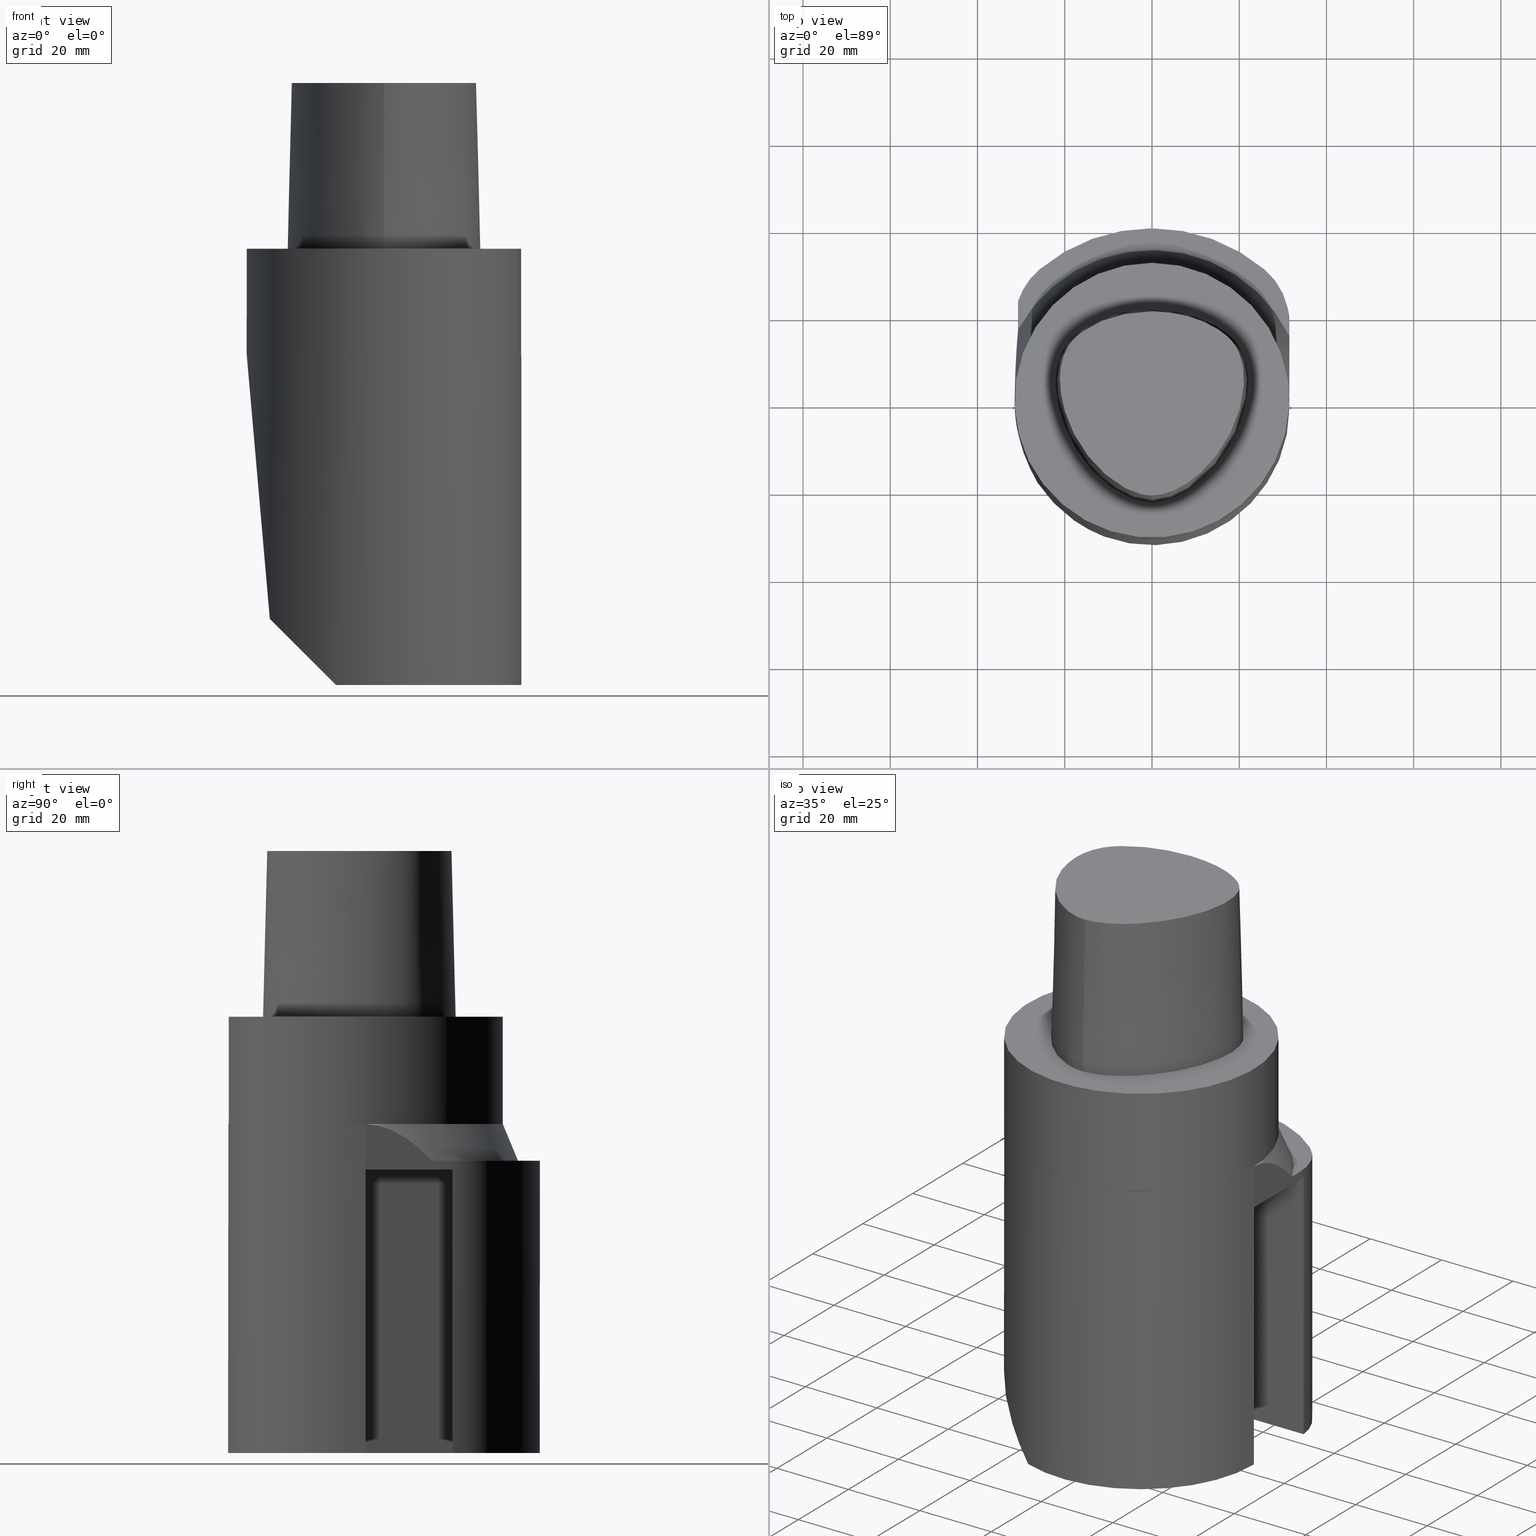
[diagram: canonical four-view strip — front | top / right | iso, engineering-drawing reading convention]
A machine part, canonical four-view strip (front | top / right | iso — engineering-drawing reading convention). The complete STEP part file that produces these views, byte-faithful:
ISO-10303-21;
HEADER;
FILE_DESCRIPTION((''),'1');
FILE_NAME('T:/21_DXF\X2\30C730FC30BF4F5C621057FA6E96\X0\/C6-180-BH20R-32100.stp','2017-05-03T05:10:21',(''),(''),'Spatial Interop R21 SP3','Kubotek KeyCreator 2011 V10.0.2 (22737)',' ');
FILE_SCHEMA(('automotive_design'));
ENDSEC;
DATA;
#1=MECHANICAL_DESIGN_GEOMETRIC_PRESENTATION_REPRESENTATION(' ',(#10,#11,#12,#13,#14,#15,#16,#17,#18,#19,#20,#21,#22,#23,#24,#25,#26,#27,#28,#29,#30,#31,#32,#33,#34,#35,#36,#37,#38,#39,#40,#41,#42,#43,#44,#45,#46,#47,#48,#49,#50,#51,#52,#53,#54,#55,#56,#57,#58,#59,#60,#61,#62,#63,#64,#65,#66,#67,#68,#69,#70,#71,#72,#73,#74,#75,#76,#77),#6);
#2=PRODUCT_DEFINITION_CONTEXT('',#78,'design');
#3=APPLICATION_PROTOCOL_DEFINITION('INTERNATIONAL STANDARD','automotive_design',1994,#78);
#4=PRODUCT_CATEGORY_RELATIONSHIP('NONE','NONE',#79,#80);
#5=SHAPE_DEFINITION_REPRESENTATION(#81,#82);
#6= (GEOMETRIC_REPRESENTATION_CONTEXT(3)GLOBAL_UNCERTAINTY_ASSIGNED_CONTEXT((#85))GLOBAL_UNIT_ASSIGNED_CONTEXT((#87,#88,#89))REPRESENTATION_CONTEXT('NONE','WORKSPACE'));
#10=STYLED_ITEM('',(#91,#92),#93);
#11=STYLED_ITEM('',(#94),#95);
#12=STYLED_ITEM('',(#96,#97),#98);
#13=STYLED_ITEM('',(#99),#100);
#14=STYLED_ITEM('',(#101),#102);
#15=STYLED_ITEM('',(#103),#104);
#16=STYLED_ITEM('',(#105),#106);
#17=STYLED_ITEM('',(#107),#108);
#18=STYLED_ITEM('',(#109),#110);
#19=STYLED_ITEM('',(#111),#112);
#20=STYLED_ITEM('',(#113),#114);
#21=STYLED_ITEM('',(#115,#116),#117);
#22=STYLED_ITEM('',(#118),#119);
#23=STYLED_ITEM('',(#120),#121);
#24=STYLED_ITEM('',(#122),#123);
#25=STYLED_ITEM('',(#124),#125);
#26=STYLED_ITEM('',(#126),#127);
#27=STYLED_ITEM('',(#128),#129);
#28=STYLED_ITEM('',(#130),#131);
#29=STYLED_ITEM('',(#132,#133),#134);
#30=STYLED_ITEM('',(#135,#136),#137);
#31=STYLED_ITEM('',(#138,#139),#140);
#32=STYLED_ITEM('',(#141),#142);
#33=STYLED_ITEM('',(#143),#144);
#34=STYLED_ITEM('',(#145),#146);
#35=STYLED_ITEM('',(#147),#148);
#36=STYLED_ITEM('',(#149,#150),#151);
#37=STYLED_ITEM('',(#152,#153),#154);
#38=STYLED_ITEM('',(#155),#156);
#39=STYLED_ITEM('',(#157),#158);
#40=STYLED_ITEM('',(#159),#160);
#41=STYLED_ITEM('',(#161),#162);
#42=STYLED_ITEM('',(#163),#164);
#43=STYLED_ITEM('',(#165),#166);
#44=STYLED_ITEM('',(#167),#168);
#45=STYLED_ITEM('',(#169,#170),#171);
#46=STYLED_ITEM('',(#172),#173);
#47=STYLED_ITEM('',(#174),#175);
#48=STYLED_ITEM('',(#176,#177),#178);
#49=STYLED_ITEM('',(#179),#180);
#50=STYLED_ITEM('',(#181,#182),#183);
#51=STYLED_ITEM('',(#184,#185),#186);
#52=STYLED_ITEM('',(#187,#188),#189);
#53=STYLED_ITEM('',(#190,#191),#192);
#54=STYLED_ITEM('',(#193,#194),#195);
#55=STYLED_ITEM('',(#196),#197);
#56=STYLED_ITEM('',(#198),#199);
#57=STYLED_ITEM('',(#200),#201);
#58=STYLED_ITEM('',(#202,#203),#204);
#59=STYLED_ITEM('',(#205,#206),#207);
#60=STYLED_ITEM('',(#208),#209);
#61=STYLED_ITEM('',(#210),#211);
#62=STYLED_ITEM('',(#212),#213);
#63=STYLED_ITEM('',(#214),#215);
#64=STYLED_ITEM('',(#216),#217);
#65=STYLED_ITEM('',(#218),#219);
#66=STYLED_ITEM('',(#220),#221);
#67=STYLED_ITEM('',(#222,#223),#224);
#68=STYLED_ITEM('',(#225,#226),#227);
#69=STYLED_ITEM('',(#228),#229);
#70=STYLED_ITEM('',(#230),#231);
#71=STYLED_ITEM('',(#232,#233),#234);
#72=STYLED_ITEM('',(#235),#236);
#73=STYLED_ITEM('',(#237),#238);
#74=STYLED_ITEM('',(#239),#240);
#75=STYLED_ITEM('',(#241),#242);
#76=STYLED_ITEM('',(#243),#244);
#77=STYLED_ITEM('',(#245,#246),#247);
#78=APPLICATION_CONTEXT(' ');
#79=PRODUCT_CATEGORY('part','NONE');
#80=PRODUCT_RELATED_PRODUCT_CATEGORY('detail',' ',(#248));
#81=PRODUCT_DEFINITION_SHAPE('NONE','NONE',#249);
#82=ADVANCED_BREP_SHAPE_REPRESENTATION('240[2]',(#140,#250),#6);
#85=UNCERTAINTY_MEASURE_WITH_UNIT(LENGTH_MEASURE(1.0E-006),#87,'','');
#87= (CONVERSION_BASED_UNIT('MILLIMETRE',#253)LENGTH_UNIT()NAMED_UNIT(#256));
#88= (NAMED_UNIT(#258)PLANE_ANGLE_UNIT()SI_UNIT($,.RADIAN.));
#89= (NAMED_UNIT(#258)SOLID_ANGLE_UNIT()SI_UNIT($,.STERADIAN.));
#91=PRESENTATION_STYLE_ASSIGNMENT((#264));
#92=PRESENTATION_STYLE_ASSIGNMENT((#265));
#93=ADVANCED_FACE('240[2]',(#266,#267),#268,.T.);
#94=PRESENTATION_STYLE_ASSIGNMENT((#269));
#95=EDGE_CURVE('240[2]',#270,#271,#272,.T.);
#96=PRESENTATION_STYLE_ASSIGNMENT((#273));
#97=PRESENTATION_STYLE_ASSIGNMENT((#274));
#98=ADVANCED_FACE('240[2]',(#275),#276,.F.);
#99=PRESENTATION_STYLE_ASSIGNMENT((#277));
#100=EDGE_CURVE('240[2]',#278,#279,#280,.T.);
#101=PRESENTATION_STYLE_ASSIGNMENT((#281));
#102=EDGE_CURVE('240[2]',#282,#283,#284,.T.);
#103=PRESENTATION_STYLE_ASSIGNMENT((#285));
#104=EDGE_CURVE('240[2]',#286,#287,#288,.T.);
#105=PRESENTATION_STYLE_ASSIGNMENT((#289));
#106=EDGE_CURVE('240[2]',#290,#291,#292,.T.);
#107=PRESENTATION_STYLE_ASSIGNMENT((#293));
#108=EDGE_CURVE('240[2]',#294,#295,#296,.T.);
#109=PRESENTATION_STYLE_ASSIGNMENT((#297));
#110=EDGE_CURVE('240[2]',#298,#299,#300,.T.);
#111=PRESENTATION_STYLE_ASSIGNMENT((#301));
#112=EDGE_CURVE('240[2]',#287,#302,#303,.F.);
#113=PRESENTATION_STYLE_ASSIGNMENT((#304));
#114=EDGE_CURVE('240[2]',#270,#302,#305,.T.);
#115=PRESENTATION_STYLE_ASSIGNMENT((#306));
#116=PRESENTATION_STYLE_ASSIGNMENT((#307));
#117=ADVANCED_FACE('240[2]',(#308),#309,.T.);
#118=PRESENTATION_STYLE_ASSIGNMENT((#310));
#119=EDGE_CURVE('240[2]',#295,#311,#312,.T.);
#120=PRESENTATION_STYLE_ASSIGNMENT((#313));
#121=EDGE_CURVE('240[2]',#314,#279,#315,.T.);
#122=PRESENTATION_STYLE_ASSIGNMENT((#316));
#123=EDGE_CURVE('240[2]',#317,#298,#318,.T.);
#124=PRESENTATION_STYLE_ASSIGNMENT((#319));
#125=EDGE_CURVE('240[2]',#320,#294,#321,.T.);
#126=PRESENTATION_STYLE_ASSIGNMENT((#322));
#127=EDGE_CURVE('240[2]',#320,#311,#323,.T.);
#128=PRESENTATION_STYLE_ASSIGNMENT((#324));
#129=EDGE_CURVE('240[2]',#320,#325,#326,.T.);
#130=PRESENTATION_STYLE_ASSIGNMENT((#327));
#131=EDGE_CURVE('240[2]',#328,#329,#330,.T.);
#132=PRESENTATION_STYLE_ASSIGNMENT((#331));
#133=PRESENTATION_STYLE_ASSIGNMENT((#332));
#134=ADVANCED_FACE('240[2]',(#333),#334,.F.);
#135=PRESENTATION_STYLE_ASSIGNMENT((#335));
#136=PRESENTATION_STYLE_ASSIGNMENT((#336));
#137=ADVANCED_FACE('240[2]',(#337),#338,.F.);
#138=PRESENTATION_STYLE_ASSIGNMENT((#339));
#139=PRESENTATION_STYLE_ASSIGNMENT((#340));
#140=MANIFOLD_SOLID_BREP('240[2]',#341);
#141=PRESENTATION_STYLE_ASSIGNMENT((#342));
#142=EDGE_CURVE('240[2]',#343,#329,#344,.T.);
#143=PRESENTATION_STYLE_ASSIGNMENT((#345));
#144=EDGE_CURVE('240[2]',#283,#271,#346,.T.);
#145=PRESENTATION_STYLE_ASSIGNMENT((#347));
#146=EDGE_CURVE('240[2]',#283,#328,#348,.T.);
#147=PRESENTATION_STYLE_ASSIGNMENT((#349));
#148=EDGE_CURVE('240[2]',#287,#343,#350,.T.);
#149=PRESENTATION_STYLE_ASSIGNMENT((#351));
#150=PRESENTATION_STYLE_ASSIGNMENT((#352));
#151=ADVANCED_FACE('240[2]',(#353),#354,.F.);
#152=PRESENTATION_STYLE_ASSIGNMENT((#355));
#153=PRESENTATION_STYLE_ASSIGNMENT((#356));
#154=ADVANCED_FACE('240[2]',(#357),#358,.F.);
#155=PRESENTATION_STYLE_ASSIGNMENT((#359));
#156=EDGE_CURVE('240[2]',#314,#299,#360,.T.);
#157=PRESENTATION_STYLE_ASSIGNMENT((#361));
#158=EDGE_CURVE('240[2]',#362,#363,#364,.T.);
#159=PRESENTATION_STYLE_ASSIGNMENT((#365));
#160=EDGE_CURVE('240[2]',#363,#317,#366,.F.);
#161=PRESENTATION_STYLE_ASSIGNMENT((#367));
#162=EDGE_CURVE('240[2]',#368,#369,#370,.T.);
#163=PRESENTATION_STYLE_ASSIGNMENT((#371));
#164=EDGE_CURVE('240[2]',#279,#372,#373,.T.);
#165=PRESENTATION_STYLE_ASSIGNMENT((#374));
#166=EDGE_CURVE('240[2]',#343,#270,#375,.T.);
#167=PRESENTATION_STYLE_ASSIGNMENT((#376));
#168=EDGE_CURVE('240[2]',#377,#282,#378,.T.);
#169=PRESENTATION_STYLE_ASSIGNMENT((#379));
#170=PRESENTATION_STYLE_ASSIGNMENT((#380));
#171=ADVANCED_FACE('240[2]',(#381),#382,.T.);
#172=PRESENTATION_STYLE_ASSIGNMENT((#383));
#173=EDGE_CURVE('240[2]',#299,#377,#384,.T.);
#174=PRESENTATION_STYLE_ASSIGNMENT((#385));
#175=EDGE_CURVE('240[2]',#302,#290,#386,.T.);
#176=PRESENTATION_STYLE_ASSIGNMENT((#387));
#177=PRESENTATION_STYLE_ASSIGNMENT((#388));
#178=ADVANCED_FACE('240[2]',(#389),#390,.F.);
#179=PRESENTATION_STYLE_ASSIGNMENT((#391));
#180=EDGE_CURVE('240[2]',#270,#278,#392,.T.);
#181=PRESENTATION_STYLE_ASSIGNMENT((#393));
#182=PRESENTATION_STYLE_ASSIGNMENT((#394));
#183=ADVANCED_FACE('240[2]',(#395),#396,.T.);
#184=PRESENTATION_STYLE_ASSIGNMENT((#397));
#185=PRESENTATION_STYLE_ASSIGNMENT((#398));
#186=ADVANCED_FACE('240[2]',(#399),#400,.T.);
#187=PRESENTATION_STYLE_ASSIGNMENT((#401));
#188=PRESENTATION_STYLE_ASSIGNMENT((#402));
#189=ADVANCED_FACE('240[2]',(#403),#404,.T.);
#190=PRESENTATION_STYLE_ASSIGNMENT((#405));
#191=PRESENTATION_STYLE_ASSIGNMENT((#406));
#192=ADVANCED_FACE('240[2]',(#407,#408),#409,.T.);
#193=PRESENTATION_STYLE_ASSIGNMENT((#410));
#194=PRESENTATION_STYLE_ASSIGNMENT((#411));
#195=ADVANCED_FACE('240[2]',(#412),#413,.T.);
#196=PRESENTATION_STYLE_ASSIGNMENT((#414));
#197=EDGE_CURVE('240[2]',#286,#290,#415,.T.);
#198=PRESENTATION_STYLE_ASSIGNMENT((#416));
#199=EDGE_CURVE('240[2]',#294,#320,#417,.T.);
#200=PRESENTATION_STYLE_ASSIGNMENT((#418));
#201=EDGE_CURVE('240[2]',#291,#278,#419,.F.);
#202=PRESENTATION_STYLE_ASSIGNMENT((#420));
#203=PRESENTATION_STYLE_ASSIGNMENT((#421));
#204=ADVANCED_FACE('240[2]',(#422),#423,.T.);
#205=PRESENTATION_STYLE_ASSIGNMENT((#424));
#206=PRESENTATION_STYLE_ASSIGNMENT((#425));
#207=ADVANCED_FACE('240[2]',(#426),#427,.T.);
#208=PRESENTATION_STYLE_ASSIGNMENT((#428));
#209=EDGE_CURVE('240[2]',#429,#429,#430,.T.);
#210=PRESENTATION_STYLE_ASSIGNMENT((#431));
#211=EDGE_CURVE('240[2]',#369,#286,#432,.T.);
#212=PRESENTATION_STYLE_ASSIGNMENT((#433));
#213=EDGE_CURVE('240[2]',#368,#362,#434,.T.);
#214=PRESENTATION_STYLE_ASSIGNMENT((#435));
#215=EDGE_CURVE('240[2]',#368,#372,#436,.T.);
#216=PRESENTATION_STYLE_ASSIGNMENT((#437));
#217=EDGE_CURVE('240[2]',#282,#377,#438,.T.);
#218=PRESENTATION_STYLE_ASSIGNMENT((#439));
#219=EDGE_CURVE('240[2]',#362,#329,#440,.F.);
#220=PRESENTATION_STYLE_ASSIGNMENT((#441));
#221=EDGE_CURVE('240[2]',#372,#442,#443,.T.);
#222=PRESENTATION_STYLE_ASSIGNMENT((#444));
#223=PRESENTATION_STYLE_ASSIGNMENT((#445));
#224=ADVANCED_FACE('240[2]',(#446),#447,.F.);
#225=PRESENTATION_STYLE_ASSIGNMENT((#448));
#226=PRESENTATION_STYLE_ASSIGNMENT((#449));
#227=ADVANCED_FACE('240[2]',(#450),#451,.T.);
#228=PRESENTATION_STYLE_ASSIGNMENT((#452));
#229=EDGE_CURVE('240[2]',#311,#325,#453,.T.);
#230=PRESENTATION_STYLE_ASSIGNMENT((#454));
#231=EDGE_CURVE('240[2]',#363,#442,#455,.T.);
#232=PRESENTATION_STYLE_ASSIGNMENT((#456));
#233=PRESENTATION_STYLE_ASSIGNMENT((#457));
#234=ADVANCED_FACE('240[2]',(#458),#459,.T.);
#235=PRESENTATION_STYLE_ASSIGNMENT((#460));
#236=EDGE_CURVE('240[2]',#369,#291,#461,.F.);
#237=PRESENTATION_STYLE_ASSIGNMENT((#462));
#238=EDGE_CURVE('240[2]',#442,#298,#463,.T.);
#239=PRESENTATION_STYLE_ASSIGNMENT((#464));
#240=EDGE_CURVE('240[2]',#271,#314,#465,.T.);
#241=PRESENTATION_STYLE_ASSIGNMENT((#466));
#242=EDGE_CURVE('240[2]',#328,#317,#467,.F.);
#243=PRESENTATION_STYLE_ASSIGNMENT((#468));
#244=EDGE_CURVE('240[2]',#325,#295,#469,.T.);
#245=PRESENTATION_STYLE_ASSIGNMENT((#470));
#246=PRESENTATION_STYLE_ASSIGNMENT((#471));
#247=ADVANCED_FACE('240[2]',(#472),#473,.T.);
#248=PRODUCT('240[2]','240[2]','PART-240[2]-DESC',(#474));
#249=PRODUCT_DEFINITION('NONE','NONE',#475,#2);
#250=AXIS2_PLACEMENT_3D('',#476,#477,#478);
#253=LENGTH_MEASURE_WITH_UNIT(LENGTH_MEASURE(1.0),#479);
#256=DIMENSIONAL_EXPONENTS(1.0,0.0,0.0,0.0,0.0,0.0,0.0);
#258=DIMENSIONAL_EXPONENTS(0.0,0.0,0.0,0.0,0.0,0.0,0.0);
#264=SURFACE_STYLE_USAGE(.BOTH.,#480);
#265=CURVE_STYLE('',#481,POSITIVE_LENGTH_MEASURE(1000.0),#482);
#266=FACE_OUTER_BOUND('',#483,.T.);
#267=FACE_BOUND('',#484,.T.);
#268=PLANE('',#485);
#269=CURVE_STYLE('',#486,POSITIVE_LENGTH_MEASURE(1000.0),#487);
#270=VERTEX_POINT('',#488);
#271=VERTEX_POINT('',#489);
#272=LINE('',#490,#491);
#273=SURFACE_STYLE_USAGE(.BOTH.,#492);
#274=CURVE_STYLE('',#493,POSITIVE_LENGTH_MEASURE(1000.0),#494);
#275=FACE_OUTER_BOUND('',#495,.T.);
#276=PLANE('',#496);
#277=CURVE_STYLE('',#497,POSITIVE_LENGTH_MEASURE(1000.0),#498);
#278=VERTEX_POINT('',#499);
#279=VERTEX_POINT('',#500);
#280=LINE('',#501,#502);
#281=CURVE_STYLE('',#503,POSITIVE_LENGTH_MEASURE(1000.0),#504);
#282=VERTEX_POINT('',#505);
#283=VERTEX_POINT('',#506);
#284=(B_SPLINE_CURVE(2,(#508,#509,#510),.UNSPECIFIED.,.F.,.F.)B_SPLINE_CURVE_WITH_KNOTS((3,3),(2.66387468098414E-012,0.190684739631489),.UNSPECIFIED.)RATIONAL_B_SPLINE_CURVE((1.0,1.00019183330553,1.0003794940894))BOUNDED_CURVE()REPRESENTATION_ITEM('')GEOMETRIC_REPRESENTATION_ITEM()CURVE());
#285=CURVE_STYLE('',#517,POSITIVE_LENGTH_MEASURE(1000.0),#518);
#286=VERTEX_POINT('',#519);
#287=VERTEX_POINT('',#520);
#288=LINE('',#521,#522);
#289=CURVE_STYLE('',#523,POSITIVE_LENGTH_MEASURE(1000.0),#524);
#290=VERTEX_POINT('',#525);
#291=VERTEX_POINT('',#526);
#292=LINE('',#527,#528);
#293=CURVE_STYLE('',#529,POSITIVE_LENGTH_MEASURE(1000.0),#530);
#294=VERTEX_POINT('',#531);
#295=VERTEX_POINT('',#532);
#296=LINE('',#533,#534);
#297=CURVE_STYLE('',#535,POSITIVE_LENGTH_MEASURE(1000.0),#536);
#298=VERTEX_POINT('',#537);
#299=VERTEX_POINT('',#538);
#300=LINE('',#539,#540);
#301=CURVE_STYLE('',#541,POSITIVE_LENGTH_MEASURE(1000.0),#542);
#302=VERTEX_POINT('',#543);
#303=LINE('',#544,#545);
#304=CURVE_STYLE('',#546,POSITIVE_LENGTH_MEASURE(1000.0),#547);
#305=LINE('',#548,#549);
#306=SURFACE_STYLE_USAGE(.BOTH.,#550);
#307=CURVE_STYLE('',#551,POSITIVE_LENGTH_MEASURE(1000.0),#552);
#308=FACE_OUTER_BOUND('',#553,.T.);
#309=CYLINDRICAL_SURFACE('',#554,40.0);
#310=CURVE_STYLE('',#555,POSITIVE_LENGTH_MEASURE(1000.0),#556);
#311=VERTEX_POINT('',#557);
#312=B_SPLINE_CURVE_WITH_KNOTS('',3,(#558,#559,#560,#561,#562,#563,#564,#565,#566,#567,#568,#569,#570,#571,#572,#573,#574,#575,#576,#577,#578,#579,#580,#581,#582,#583,#584,#585,#586,#587,#588,#589),.UNSPECIFIED.,.F.,.F.,(4,2,2,2,2,2,2,2,2,2,2,2,2,2,2,4),(6.6151339308743,6.90353802293409,7.19194211499389,7.48034620705369,7.76875029911348,8.3273781966476,8.88600609418171,10.0632582234986,10.5220146921826,10.9807711608666,11.2101493952086,11.4395276295506,11.8982840982346,12.4281394376607,12.8292036497046,13.2302678617486),.UNSPECIFIED.);
#313=CURVE_STYLE('',#590,POSITIVE_LENGTH_MEASURE(1000.0),#591);
#314=VERTEX_POINT('',#592);
#315=LINE('',#593,#594);
#316=CURVE_STYLE('',#595,POSITIVE_LENGTH_MEASURE(1000.0),#596);
#317=VERTEX_POINT('',#597);
#318=ELLIPSE('',#598,183.579411930717,15.9999999999997);
#319=CURVE_STYLE('',#599,POSITIVE_LENGTH_MEASURE(1000.0),#600);
#320=VERTEX_POINT('',#601);
#321=B_SPLINE_CURVE_WITH_KNOTS('',3,(#602,#603,#604,#605,#606,#607,#608,#609,#610,#611,#612,#613,#614,#615,#616,#617),.UNSPECIFIED.,.F.,.F.,(4,1,1,1,1,1,1,1,1,1,1,1,1,4),(0.0,0.447924670568964,0.9388024242536,1.50591409090711,2.07314340012323,2.72424957442464,3.2253501842849,3.80982102049476,4.34867996267067,4.85900173381144,5.37972031856977,6.03459825488646,6.61113557741484,6.61513393087381),.UNSPECIFIED.);
#322=CURVE_STYLE('',#618,POSITIVE_LENGTH_MEASURE(1000.0),#619);
#323=LINE('',#620,#621);
#324=CURVE_STYLE('',#622,POSITIVE_LENGTH_MEASURE(1000.0),#623);
#325=VERTEX_POINT('',#624);
#326=LINE('',#625,#626);
#327=CURVE_STYLE('',#627,POSITIVE_LENGTH_MEASURE(1000.0),#628);
#328=VERTEX_POINT('',#629);
#329=VERTEX_POINT('',#630);
#330=ELLIPSE('',#631,44.5477272147523,31.5000000000001);
#331=SURFACE_STYLE_USAGE(.BOTH.,#632);
#332=CURVE_STYLE('',#633,POSITIVE_LENGTH_MEASURE(1000.0),#634);
#333=FACE_OUTER_BOUND('',#635,.T.);
#334=PLANE('',#636);
#335=SURFACE_STYLE_USAGE(.BOTH.,#637);
#336=CURVE_STYLE('',#638,POSITIVE_LENGTH_MEASURE(1000.0),#639);
#337=FACE_OUTER_BOUND('',#640,.T.);
#338=PLANE('',#641);
#339=SURFACE_STYLE_USAGE(.BOTH.,#642);
#340=CURVE_STYLE('',#643,POSITIVE_LENGTH_MEASURE(1000.0),#644);
#341=CLOSED_SHELL('',(#93,#224,#154,#195,#117,#204,#234,#98,#137,#134,#151,#227,#183,#178,#171,#192,#186,#247,#189,#207));
#342=CURVE_STYLE('',#645,POSITIVE_LENGTH_MEASURE(1000.0),#646);
#343=VERTEX_POINT('',#647);
#344=CIRCLE('',#648,31.5000000000001);
#345=CURVE_STYLE('',#649,POSITIVE_LENGTH_MEASURE(1000.0),#650);
#346=CIRCLE('',#651,31.5000000000001);
#347=CURVE_STYLE('',#652,POSITIVE_LENGTH_MEASURE(1000.0),#653);
#348=ELLIPSE('',#654,361.421967238607,31.5000000000001);
#349=CURVE_STYLE('',#655,POSITIVE_LENGTH_MEASURE(1000.0),#656);
#350=LINE('',#657,#658);
#351=SURFACE_STYLE_USAGE(.BOTH.,#659);
#352=CURVE_STYLE('',#660,POSITIVE_LENGTH_MEASURE(1000.0),#661);
#353=FACE_OUTER_BOUND('',#662,.T.);
#354=PLANE('',#663);
#355=SURFACE_STYLE_USAGE(.BOTH.,#664);
#356=CURVE_STYLE('',#665,POSITIVE_LENGTH_MEASURE(1000.0),#666);
#357=FACE_OUTER_BOUND('',#667,.T.);
#358=PLANE('',#668);
#359=CURVE_STYLE('',#669,POSITIVE_LENGTH_MEASURE(1000.0),#670);
#360=CIRCLE('',#671,35.0000000000054);
#361=CURVE_STYLE('',#672,POSITIVE_LENGTH_MEASURE(1000.0),#673);
#362=VERTEX_POINT('',#674);
#363=VERTEX_POINT('',#675);
#364=ELLIPSE('',#676,56.5685424949234,40.0);
#365=CURVE_STYLE('',#677,POSITIVE_LENGTH_MEASURE(1000.0),#678);
#366=ELLIPSE('',#679,22.6274169979689,15.9999999999997);
#367=CURVE_STYLE('',#680,POSITIVE_LENGTH_MEASURE(1000.0),#681);
#368=VERTEX_POINT('',#682);
#369=VERTEX_POINT('',#683);
#370=CIRCLE('',#684,16.0000000000003);
#371=CURVE_STYLE('',#685,POSITIVE_LENGTH_MEASURE(1000.0),#686);
#372=VERTEX_POINT('',#687);
#373=CIRCLE('',#688,16.0000000000003);
#374=CURVE_STYLE('',#689,POSITIVE_LENGTH_MEASURE(1000.0),#690);
#375=LINE('',#691,#692);
#376=CURVE_STYLE('',#693,POSITIVE_LENGTH_MEASURE(1000.0),#694);
#377=VERTEX_POINT('',#695);
#378=ELLIPSE('',#696,361.335914389261,31.4924999999998);
#379=SURFACE_STYLE_USAGE(.BOTH.,#697);
#380=CURVE_STYLE('',#698,POSITIVE_LENGTH_MEASURE(1000.0),#699);
#381=FACE_OUTER_BOUND('',#700,.T.);
#382=CONICAL_SURFACE('',#701,33.2462500000026,0.394554409968623);
#383=CURVE_STYLE('',#702,POSITIVE_LENGTH_MEASURE(1000.0),#703);
#384=(B_SPLINE_CURVE(2,(#705,#706,#707),.UNSPECIFIED.,.F.,.F.)B_SPLINE_CURVE_WITH_KNOTS((3,3),(0.000528695465248167,17.5336100710716),.UNSPECIFIED.)RATIONAL_B_SPLINE_CURVE((1.00000106372792,1.01763868971882,1.0))BOUNDED_CURVE()REPRESENTATION_ITEM('')GEOMETRIC_REPRESENTATION_ITEM()CURVE());
#385=CURVE_STYLE('',#714,POSITIVE_LENGTH_MEASURE(1000.0),#715);
#386=LINE('',#716,#717);
#387=SURFACE_STYLE_USAGE(.BOTH.,#718);
#388=CURVE_STYLE('',#719,POSITIVE_LENGTH_MEASURE(1000.0),#720);
#389=FACE_OUTER_BOUND('',#721,.T.);
#390=PLANE('',#722);
#391=CURVE_STYLE('',#723,POSITIVE_LENGTH_MEASURE(1000.0),#724);
#392=LINE('',#725,#726);
#393=SURFACE_STYLE_USAGE(.BOTH.,#727);
#394=CURVE_STYLE('',#728,POSITIVE_LENGTH_MEASURE(1000.0),#729);
#395=FACE_OUTER_BOUND('',#730,.T.);
#396=CYLINDRICAL_SURFACE('',#731,31.5000000000001);
#397=SURFACE_STYLE_USAGE(.BOTH.,#732);
#398=CURVE_STYLE('',#733,POSITIVE_LENGTH_MEASURE(1000.0),#734);
#399=FACE_OUTER_BOUND('',#735,.T.);
#400=B_SPLINE_SURFACE_WITH_KNOTS('',3,3,((#736,#737,#738,#739),(#740,#741,#742,#743),(#744,#745,#746,#747),(#748,#749,#750,#751),(#752,#753,#754,#755),(#756,#757,#758,#759),(#760,#761,#762,#763),(#764,#765,#766,#767),(#768,#769,#770,#771),(#772,#773,#774,#775),(#776,#777,#778,#779),(#780,#781,#782,#783),(#784,#785,#786,#787),(#788,#789,#790,#791),(#792,#793,#794,#795),(#796,#797,#798,#799),(#800,#801,#802,#803)),.UNSPECIFIED.,.F.,.F.,.F.,(4,1,1,1,1,1,1,1,1,1,1,1,1,1,4),(4,4),(-13.2302678617486,-12.816821991069,-12.4033761203893,-11.9899302497097,-11.57648437903,-11.1630385083504,-10.9563155730106,-10.7495926376707,-10.3361467669911,-9.92270089631145,-9.09580915495216,-8.26891741359287,-7.44202567223358,-7.02857980155394,-6.6151339308743),(-3.8,0.0),.UNSPECIFIED.);
#401=SURFACE_STYLE_USAGE(.BOTH.,#804);
#402=CURVE_STYLE('',#805,POSITIVE_LENGTH_MEASURE(1000.0),#806);
#403=FACE_OUTER_BOUND('',#807,.T.);
#404=CONICAL_SURFACE('',#808,1.0,0.0249931148600041);
#405=SURFACE_STYLE_USAGE(.BOTH.,#809);
#406=CURVE_STYLE('',#810,POSITIVE_LENGTH_MEASURE(1000.0),#811);
#407=FACE_BOUND('',#812,.T.);
#408=FACE_BOUND('',#813,.T.);
#409=CYLINDRICAL_SURFACE('',#814,31.4924999999998);
#410=SURFACE_STYLE_USAGE(.BOTH.,#815);
#411=CURVE_STYLE('',#816,POSITIVE_LENGTH_MEASURE(1000.0),#817);
#412=FACE_OUTER_BOUND('',#818,.T.);
#413=PLANE('',#819);
#414=CURVE_STYLE('',#820,POSITIVE_LENGTH_MEASURE(1000.0),#821);
#415=LINE('',#822,#823);
#416=CURVE_STYLE('',#824,POSITIVE_LENGTH_MEASURE(1000.0),#825);
#417=B_SPLINE_CURVE_WITH_KNOTS('',3,(#826,#827,#828,#829,#830,#831,#832,#833,#834,#835,#836,#837,#838,#839,#840,#841),.UNSPECIFIED.,.F.,.F.,(4,1,1,1,1,1,1,1,1,1,1,1,1,4),(6.61513393087489,6.99917207152274,7.48193246986995,7.96289324787093,8.45540287038584,9.10291653679981,9.67129810936083,10.1618749681153,10.6358867802489,11.1080734988593,11.6043706019633,12.09451993853,12.6985979284494,13.2302678617486),.UNSPECIFIED.);
#418=CURVE_STYLE('',#842,POSITIVE_LENGTH_MEASURE(1000.0),#843);
#419=CIRCLE('',#844,16.0000000000003);
#420=SURFACE_STYLE_USAGE(.BOTH.,#845);
#421=CURVE_STYLE('',#846,POSITIVE_LENGTH_MEASURE(1000.0),#847);
#422=FACE_OUTER_BOUND('',#848,.T.);
#423=CYLINDRICAL_SURFACE('',#849,15.9999999999997);
#424=SURFACE_STYLE_USAGE(.BOTH.,#850);
#425=CURVE_STYLE('',#851,POSITIVE_LENGTH_MEASURE(1000.0),#852);
#426=FACE_OUTER_BOUND('',#853,.T.);
#427=PLANE('',#854);
#428=CURVE_STYLE('',#855,POSITIVE_LENGTH_MEASURE(1000.0),#856);
#429=VERTEX_POINT('',#857);
#430=CIRCLE('',#858,31.4924999999997);
#431=CURVE_STYLE('',#859,POSITIVE_LENGTH_MEASURE(1000.0),#860);
#432=LINE('',#861,#862);
#433=CURVE_STYLE('',#863,POSITIVE_LENGTH_MEASURE(1000.0),#864);
#434=CIRCLE('',#865,40.0);
#435=CURVE_STYLE('',#866,POSITIVE_LENGTH_MEASURE(1000.0),#867);
#436=LINE('',#868,#869);
#437=CURVE_STYLE('',#870,POSITIVE_LENGTH_MEASURE(1000.0),#871);
#438=CIRCLE('',#872,31.4924999999999);
#439=CURVE_STYLE('',#873,POSITIVE_LENGTH_MEASURE(1000.0),#874);
#440=LINE('',#875,#876);
#441=CURVE_STYLE('',#877,POSITIVE_LENGTH_MEASURE(1000.0),#878);
#442=VERTEX_POINT('',#879);
#443=CIRCLE('',#880,40.0000000000001);
#444=SURFACE_STYLE_USAGE(.BOTH.,#881);
#445=CURVE_STYLE('',#882,POSITIVE_LENGTH_MEASURE(1000.0),#883);
#446=FACE_OUTER_BOUND('',#884,.T.);
#447=PLANE('',#885);
#448=SURFACE_STYLE_USAGE(.BOTH.,#886);
#449=CURVE_STYLE('',#887,POSITIVE_LENGTH_MEASURE(1000.0),#888);
#450=FACE_OUTER_BOUND('',#889,.T.);
#451=CYLINDRICAL_SURFACE('',#890,16.0000000000003);
#452=CURVE_STYLE('',#891,POSITIVE_LENGTH_MEASURE(1000.0),#892);
#453=CIRCLE('',#893,0.949936168379101);
#454=CURVE_STYLE('',#894,POSITIVE_LENGTH_MEASURE(1000.0),#895);
#455=LINE('',#896,#897);
#456=SURFACE_STYLE_USAGE(.BOTH.,#898);
#457=CURVE_STYLE('',#899,POSITIVE_LENGTH_MEASURE(1000.0),#900);
#458=FACE_OUTER_BOUND('',#901,.T.);
#459=PLANE('',#902);
#460=CURVE_STYLE('',#903,POSITIVE_LENGTH_MEASURE(1000.0),#904);
#461=LINE('',#905,#906);
#462=CURVE_STYLE('',#907,POSITIVE_LENGTH_MEASURE(1000.0),#908);
#463=CIRCLE('',#909,15.9999999999997);
#464=CURVE_STYLE('',#910,POSITIVE_LENGTH_MEASURE(1000.0),#911);
#465=(B_SPLINE_CURVE(2,(#913,#914,#915),.UNSPECIFIED.,.F.,.F.)B_SPLINE_CURVE_WITH_KNOTS((3,3),(17.4185009161124,34.8370018322249),.UNSPECIFIED.)RATIONAL_B_SPLINE_CURVE((1.05555555555563,1.05555555555563,1.0))BOUNDED_CURVE()REPRESENTATION_ITEM('')GEOMETRIC_REPRESENTATION_ITEM()CURVE());
#466=CURVE_STYLE('',#922,POSITIVE_LENGTH_MEASURE(1000.0),#923);
#467=LINE('',#924,#925);
#468=CURVE_STYLE('',#926,POSITIVE_LENGTH_MEASURE(1000.0),#927);
#469=B_SPLINE_CURVE_WITH_KNOTS('',3,(#928,#929,#930,#931,#932,#933,#934,#935,#936,#937,#938,#939,#940,#941,#942,#943,#944,#945,#946,#947,#948,#949,#950,#951,#952,#953,#954,#955,#956,#957),.UNSPECIFIED.,.F.,.F.,(4,2,2,2,2,2,2,2,2,2,2,2,2,2,4),(0.0,0.576808184119594,1.15361636823919,1.43293031700624,1.7122442657733,1.99155821454036,2.27087216330741,2.85949822796588,3.15381126029511,3.44812429262434,4.36563722999232,5.28315016736029,5.8130055067864,6.21406971883035,6.6151339308743),.UNSPECIFIED.);
#470=SURFACE_STYLE_USAGE(.BOTH.,#958);
#471=CURVE_STYLE('',#959,POSITIVE_LENGTH_MEASURE(1000.0),#960);
#472=FACE_OUTER_BOUND('',#961,.T.);
#473=B_SPLINE_SURFACE_WITH_KNOTS('',3,3,((#962,#963,#964,#965),(#966,#967,#968,#969),(#970,#971,#972,#973),(#974,#975,#976,#977),(#978,#979,#980,#981),(#982,#983,#984,#985),(#986,#987,#988,#989),(#990,#991,#992,#993),(#994,#995,#996,#997),(#998,#999,#1000,#1001),(#1002,#1003,#1004,#1005),(#1006,#1007,#1008,#1009),(#1010,#1011,#1012,#1013),(#1014,#1015,#1016,#1017),(#1018,#1019,#1020,#1021),(#1022,#1023,#1024,#1025),(#1026,#1027,#1028,#1029),(#1030,#1031,#1032,#1033)),.UNSPECIFIED.,.F.,.F.,.F.,(4,1,1,1,1,1,1,1,1,2,1,1,1,1,4),(4,4),(-6.6151339308743,-6.20168806019465,-5.78824218951501,-5.37479631883537,-4.96135044815572,-4.13445870679644,-3.30756696543715,-2.89412109475751,-2.48067522407786,-2.06722935339822,-1.65378348271857,-1.24033761203893,-0.826891741359287,-0.413445870679644,0.0),(-3.8,0.0),.UNSPECIFIED.);
#474=PRODUCT_CONTEXT('',#78,'mechanical');
#475=PRODUCT_DEFINITION_FORMATION_WITH_SPECIFIED_SOURCE(' ','NONE',#248,.NOT_KNOWN.);
#476=CARTESIAN_POINT('',(0.0,0.0,0.0));
#477=DIRECTION('',(0.0,0.0,1.0));
#478=DIRECTION('',(1.0,0.0,0.0));
#479= (NAMED_UNIT(#256)LENGTH_UNIT()SI_UNIT(.MILLI.,.METRE.));
#480=SURFACE_SIDE_STYLE('',(#1035));
#481=DRAUGHTING_PRE_DEFINED_CURVE_FONT('continuous');
#482=COLOUR_RGB('',0.0,1.0,1.0);
#483=EDGE_LOOP('',(#1036));
#484=EDGE_LOOP('',(#1037,#1038,#1039));
#485=AXIS2_PLACEMENT_3D('',#1040,#1041,#1042);
#486=DRAUGHTING_PRE_DEFINED_CURVE_FONT('continuous');
#487=COLOUR_RGB('',0.0,1.0,1.0);
#488=CARTESIAN_POINT('',(31.5000000000002,-5.15078432459043E-013,-34.9999998226051));
#489=CARTESIAN_POINT('',(31.5000000000003,-3.97903932025656E-013,-24.5943962641397));
#490=CARTESIAN_POINT('',(31.5000000000003,-4.2632564145606E-013,-244.999999822605));
#491=VECTOR('',#1043,1.0);
#492=SURFACE_SIDE_STYLE('',(#1044));
#493=DRAUGHTING_PRE_DEFINED_CURVE_FONT('continuous');
#494=COLOUR_RGB('',0.0,1.0,1.0);
#495=EDGE_LOOP('',(#1045,#1046,#1047,#1048));
#496=AXIS2_PLACEMENT_3D('',#1049,#1050,#1051);
#497=DRAUGHTING_PRE_DEFINED_CURVE_FONT('continuous');
#498=COLOUR_RGB('',0.0,1.0,1.0);
#499=CARTESIAN_POINT('',(31.5000000000005,18.3234822018079,-34.9999998226051));
#500=CARTESIAN_POINT('',(31.5000000000005,18.323482201808,-32.9999999999964));
#501=CARTESIAN_POINT('',(31.5000000000005,18.3234822018079,-244.999999822605));
#502=VECTOR('',#1052,1.0);
#503=DRAUGHTING_PRE_DEFINED_CURVE_FONT('continuous');
#504=COLOUR_RGB('',0.0,1.0,1.0);
#505=CARTESIAN_POINT('',(-31.4461826443,-1.70738201680771,-24.5763842561333));
#506=CARTESIAN_POINT('',(-31.4446067977921,-1.86727162787003,-24.5943962641391));
#508=CARTESIAN_POINT('',(-31.4461826443,-1.70738201680715,-24.5763842561333));
#509=CARTESIAN_POINT('',(-31.445429963829,-1.7873193017907,-24.5849874332835));
#510=CARTESIAN_POINT('',(-31.4446067977921,-1.86727162787002,-24.5943962641392));
#517=DRAUGHTING_PRE_DEFINED_CURVE_FONT('continuous');
#518=COLOUR_RGB('',0.0,1.0,1.0);
#519=CARTESIAN_POINT('',(11.5000000000002,20.0000000000005,-99.9999998226051));
#520=CARTESIAN_POINT('',(11.5,-2.39812849879307E-013,-99.9999998226051));
#521=CARTESIAN_POINT('',(11.5000000000002,14.95,-99.9999998226051));
#522=VECTOR('',#1053,1.0);
#523=DRAUGHTING_PRE_DEFINED_CURVE_FONT('continuous');
#524=COLOUR_RGB('',0.0,1.0,1.0);
#525=CARTESIAN_POINT('',(11.5000000000002,20.0000000000005,-34.9999998226051));
#526=CARTESIAN_POINT('',(31.4119228276272,20.0,-34.9999998226051));
#527=CARTESIAN_POINT('',(11.5000000000002,20.0000000000005,-34.9999998226051));
#528=VECTOR('',#1054,1.0);
#529=DRAUGHTING_PRE_DEFINED_CURVE_FONT('continuous');
#530=COLOUR_RGB('',0.0,1.0,1.0);
#531=CARTESIAN_POINT('',(0.038736923393866,-22.5191997536361,38.0));
#532=CARTESIAN_POINT('',(0.04359356758149,-23.4691235068931,0.0));
#533=CARTESIAN_POINT('',(0.038736923393866,-22.5191997536361,38.0));
#534=VECTOR('',#1055,38.0118715498723);
#535=DRAUGHTING_PRE_DEFINED_CURVE_FONT('continuous');
#536=COLOUR_RGB('',0.0,1.0,1.0);
#537=CARTESIAN_POINT('',(-30.7092117608135,23.2913668235292,-32.9999999999964));
#538=CARTESIAN_POINT('',(-30.7092117608135,16.7911974864777,-32.9999999999964));
#539=CARTESIAN_POINT('',(-30.7092117608135,-40.7499999999987,-32.9999999999964));
#540=VECTOR('',#1056,1.0);
#541=DRAUGHTING_PRE_DEFINED_CURVE_FONT('continuous');
#542=COLOUR_RGB('',0.0,1.0,1.0);
#543=CARTESIAN_POINT('',(11.4999999999999,-2.31863700469042E-013,-34.9999998226051));
#544=CARTESIAN_POINT('',(11.5,-2.57837001338476E-013,-244.999999822605));
#545=VECTOR('',#1057,1.0);
#546=DRAUGHTING_PRE_DEFINED_CURVE_FONT('continuous');
#547=COLOUR_RGB('',0.0,1.0,1.0);
#548=CARTESIAN_POINT('',(20.4996023943969,-4.24805002703997E-013,-34.9999998226051));
#549=VECTOR('',#1058,1.0);
#550=SURFACE_SIDE_STYLE('',(#1059));
#551=DRAUGHTING_PRE_DEFINED_CURVE_FONT('continuous');
#552=COLOUR_RGB('',0.0,1.0,1.0);
#553=EDGE_LOOP('',(#1060,#1061,#1062,#1063,#1064));
#554=AXIS2_PLACEMENT_3D('',#1065,#1066,#1067);
#555=DRAUGHTING_PRE_DEFINED_CURVE_FONT('continuous');
#556=COLOUR_RGB('',0.0,1.0,1.0);
#557=CARTESIAN_POINT('',(0.044682985379347,20.6765087343109,0.0));
#558=CARTESIAN_POINT('',(0.04359356758149,-23.4691235068931,0.0));
#559=CARTESIAN_POINT('',(1.1004598519742,-23.4637201011149,7.105427E-015));
#560=CARTESIAN_POINT('',(2.14400887535539,-23.2973076591387,0.0));
#561=CARTESIAN_POINT('',(4.1424681795584,-22.7592077909815,0.0));
#562=CARTESIAN_POINT('',(5.09815205870591,-22.390397570418,-7.105427E-015));
#563=CARTESIAN_POINT('',(6.9351099930747,-21.5078613163183,-7.105427E-015));
#564=CARTESIAN_POINT('',(7.80351845767777,-20.9996631554928,-7.105427E-015));
#565=CARTESIAN_POINT('',(9.46943987011575,-19.8886274331692,-7.105427E-015));
#566=CARTESIAN_POINT('',(10.2666299015956,-19.2853057570752,-7.105427E-015));
#567=CARTESIAN_POINT('',(12.5026318141948,-17.3963733278614,2.131628E-014));
#568=CARTESIAN_POINT('',(13.8422909676271,-16.0046937991299,0.0));
#569=CARTESIAN_POINT('',(16.2509822407142,-13.0101546997628,1.421085E-014));
#570=CARTESIAN_POINT('',(17.3206577927156,-11.4078127381174,-7.105427E-015));
#571=CARTESIAN_POINT('',(20.1948648257688,-6.17855164445771,-7.105427E-015));
#572=CARTESIAN_POINT('',(21.5264998810762,-2.27044916431131,-7.105427E-015));
#573=CARTESIAN_POINT('',(22.1083077940609,3.36511341978747,-7.105427E-015));
#574=CARTESIAN_POINT('',(22.1437891560423,4.95691742010578,-7.105427E-015));
#575=CARTESIAN_POINT('',(21.7438554055,8.21486313336421,-7.105427E-015));
#576=CARTESIAN_POINT('',(21.2813238062713,9.87761881981491,0.0));
#577=CARTESIAN_POINT('',(20.1794569882097,12.0317423962685,0.0));
#578=CARTESIAN_POINT('',(19.7024138468366,12.7593191234763,-7.105427E-015));
#579=CARTESIAN_POINT('',(18.6262164065722,14.0443851003557,-7.105427E-015));
#580=CARTESIAN_POINT('',(18.0388107856225,14.6116679410871,0.0));
#581=CARTESIAN_POINT('',(16.1284788612342,16.197117807416,7.105427E-015));
#582=CARTESIAN_POINT('',(14.7618818860482,17.03003182658,0.0));
#583=CARTESIAN_POINT('',(11.6856166176821,18.5458506425855,0.0));
#584=CARTESIAN_POINT('',(9.96274972961394,19.1800623227596,0.0));
#585=CARTESIAN_POINT('',(6.84723700488339,20.0025241142556,0.0));
#586=CARTESIAN_POINT('',(5.4719505740624,20.2496312304465,0.0));
#587=CARTESIAN_POINT('',(2.7387517037224,20.5467807312008,0.0));
#588=CARTESIAN_POINT('',(1.38248716057628,20.6117898211938,0.0));
#589=CARTESIAN_POINT('',(0.044682985379347,20.6765087343109,0.0));
#590=DRAUGHTING_PRE_DEFINED_CURVE_FONT('continuous');
#591=COLOUR_RGB('',0.0,1.0,1.0);
#592=CARTESIAN_POINT('',(31.5000000000005,15.2561463024038,-32.9999999999964));
#593=CARTESIAN_POINT('',(31.5000000000006,23.3308705504531,-32.9999999999964));
#594=VECTOR('',#1068,1.0);
#595=DRAUGHTING_PRE_DEFINED_CURVE_FONT('continuous');
#596=COLOUR_RGB('',0.0,1.0,1.0);
#597=CARTESIAN_POINT('',(-26.1751225238349,30.2416095337812,-84.8248771240493));
#598=AXIS2_PLACEMENT_3D('',#1069,#1070,#1071);
#599=DRAUGHTING_PRE_DEFINED_CURVE_FONT('continuous');
#600=COLOUR_RGB('',0.0,1.0,1.0);
#601=CARTESIAN_POINT('',(-0.001218547003662,19.7276821925089,38.0));
#602=CARTESIAN_POINT('',(-0.001218547003662,19.7276821925089,38.0));
#603=CARTESIAN_POINT('',(-1.49408492138443,19.6585333605309,38.0));
#604=CARTESIAN_POINT('',(-4.62297391420352,19.513604770166,38.0));
#605=CARTESIAN_POINT('',(-9.56160616752212,18.4291575730197,38.0));
#606=CARTESIAN_POINT('',(-14.5427684976927,16.2697452580488,38.0));
#607=CARTESIAN_POINT('',(-19.4315563551602,12.5302108980807,38.0));
#608=CARTESIAN_POINT('',(-21.306358833612,6.76352894547076,38.0));
#609=CARTESIAN_POINT('',(-21.0724946936277,0.957075236984038,38.0));
#610=CARTESIAN_POINT('',(-19.7876470880144,-4.34628503581652,38.0));
#611=CARTESIAN_POINT('',(-17.5396999600095,-9.33314444653089,38.0));
#612=CARTESIAN_POINT('',(-14.645447733857,-13.7185760345629,38.0));
#613=CARTESIAN_POINT('',(-10.7996726536643,-17.856257282137,38.0));
#614=CARTESIAN_POINT('',(-6.00479510196376,-21.2687382067675,38.0));
#615=CARTESIAN_POINT('',(-1.90747171908525,-22.5250621415864,38.0));
#616=CARTESIAN_POINT('',(0.025424107066464,-22.5192678176378,38.0));
#617=CARTESIAN_POINT('',(0.038736923394311,-22.519199753636,38.0));
#618=DRAUGHTING_PRE_DEFINED_CURVE_FONT('continuous');
#619=COLOUR_RGB('',0.0,1.0,1.0);
#620=CARTESIAN_POINT('',(-0.001218547003662,19.7276821925089,38.0));
#621=VECTOR('',#1072,38.0118715503078);
#622=DRAUGHTING_PRE_DEFINED_CURVE_FONT('continuous');
#623=COLOUR_RGB('',0.0,1.0,1.0);
#624=CARTESIAN_POINT('',(-0.045171994691285,20.6766009553285,0.0));
#625=CARTESIAN_POINT('',(-0.001218547003662,19.7276821925089,38.0));
#626=VECTOR('',#1073,38.0118715498723);
#627=DRAUGHTING_PRE_DEFINED_CURVE_FONT('continuous');
#628=COLOUR_RGB('',0.0,1.0,1.0);
#629=CARTESIAN_POINT('',(-26.175122523835,-17.5246386799338,-84.824877124049));
#630=CARTESIAN_POINT('',(-10.9999998252791,-29.5169443514038,-99.9999998226051));
#631=AXIS2_PLACEMENT_3D('',#1074,#1075,#1076);
#632=SURFACE_SIDE_STYLE('',(#1077));
#633=DRAUGHTING_PRE_DEFINED_CURVE_FONT('continuous');
#634=COLOUR_RGB('',0.0,1.0,1.0);
#635=EDGE_LOOP('',(#1078,#1079,#1080,#1081));
#636=AXIS2_PLACEMENT_3D('',#1082,#1083,#1084);
#637=SURFACE_SIDE_STYLE('',(#1085));
#638=DRAUGHTING_PRE_DEFINED_CURVE_FONT('continuous');
#639=COLOUR_RGB('',0.0,1.0,1.0);
#640=EDGE_LOOP('',(#1086,#1087,#1088,#1089));
#641=AXIS2_PLACEMENT_3D('',#1090,#1091,#1092);
#642=SURFACE_SIDE_STYLE('',(#1093));
#643=DRAUGHTING_PRE_DEFINED_CURVE_FONT('continuous');
#644=COLOUR_RGB('',0.0,1.0,1.0);
#645=DRAUGHTING_PRE_DEFINED_CURVE_FONT('continuous');
#646=COLOUR_RGB('',0.0,1.0,1.0);
#647=CARTESIAN_POINT('',(31.5000000000001,-6.68634846303844E-013,-99.9999998226051));
#648=AXIS2_PLACEMENT_3D('',#1094,#1095,#1096);
#649=DRAUGHTING_PRE_DEFINED_CURVE_FONT('continuous');
#650=COLOUR_RGB('',0.0,1.0,1.0);
#651=AXIS2_PLACEMENT_3D('',#1097,#1098,#1099);
#652=DRAUGHTING_PRE_DEFINED_CURVE_FONT('continuous');
#653=COLOUR_RGB('',0.0,1.0,1.0);
#654=AXIS2_PLACEMENT_3D('',#1100,#1101,#1102);
#655=DRAUGHTING_PRE_DEFINED_CURVE_FONT('continuous');
#656=COLOUR_RGB('',0.0,1.0,1.0);
#657=CARTESIAN_POINT('',(10.7499999999998,-2.23824056667614E-013,-99.9999998226051));
#658=VECTOR('',#1103,1.0);
#659=SURFACE_SIDE_STYLE('',(#1104));
#660=DRAUGHTING_PRE_DEFINED_CURVE_FONT('continuous');
#661=COLOUR_RGB('',0.0,1.0,1.0);
#662=EDGE_LOOP('',(#1105,#1106,#1107,#1108,#1109));
#663=AXIS2_PLACEMENT_3D('',#1110,#1111,#1112);
#664=SURFACE_SIDE_STYLE('',(#1113));
#665=DRAUGHTING_PRE_DEFINED_CURVE_FONT('continuous');
#666=COLOUR_RGB('',0.0,1.0,1.0);
#667=EDGE_LOOP('',(#1114,#1115,#1116,#1117,#1118,#1119,#1120));
#668=AXIS2_PLACEMENT_3D('',#1121,#1122,#1123);
#669=DRAUGHTING_PRE_DEFINED_CURVE_FONT('continuous');
#670=COLOUR_RGB('',0.0,1.0,1.0);
#671=AXIS2_PLACEMENT_3D('',#1124,#1125,#1126);
#672=DRAUGHTING_PRE_DEFINED_CURVE_FONT('continuous');
#673=COLOUR_RGB('',0.0,1.0,1.0);
#674=CARTESIAN_POINT('',(-10.9999998252788,38.457769096034,-99.9999998226051));
#675=CARTESIAN_POINT('',(-25.833333333333,30.5391370030147,-85.1666663145511));
#676=AXIS2_PLACEMENT_3D('',#1127,#1128,#1129);
#677=DRAUGHTING_PRE_DEFINED_CURVE_FONT('continuous');
#678=COLOUR_RGB('',0.0,1.0,1.0);
#679=AXIS2_PLACEMENT_3D('',#1130,#1131,#1132);
#680=DRAUGHTING_PRE_DEFINED_CURVE_FONT('continuous');
#681=COLOUR_RGB('',0.0,1.0,1.0);
#682=CARTESIAN_POINT('',(25.8333333333343,30.5391370030137,-99.9999998226051));
#683=CARTESIAN_POINT('',(31.4119228276271,20.0,-99.9999998226051));
#684=AXIS2_PLACEMENT_3D('',#1133,#1134,#1135);
#685=DRAUGHTING_PRE_DEFINED_CURVE_FONT('continuous');
#686=COLOUR_RGB('',0.0,1.0,1.0);
#687=CARTESIAN_POINT('',(25.833333333334,30.539137003014,-32.9999999999964));
#688=AXIS2_PLACEMENT_3D('',#1136,#1137,#1138);
#689=DRAUGHTING_PRE_DEFINED_CURVE_FONT('continuous');
#690=COLOUR_RGB('',0.0,1.0,1.0);
#691=CARTESIAN_POINT('',(31.5000000000001,-6.86392221660319E-013,-244.999999822605));
#692=VECTOR('',#1139,1.0);
#693=DRAUGHTING_PRE_DEFINED_CURVE_FONT('continuous');
#694=COLOUR_RGB('',0.0,1.0,1.0);
#695=CARTESIAN_POINT('',(-31.4461826443,1.70738201680771,-24.5763842561333));
#696=AXIS2_PLACEMENT_3D('',#1140,#1141,#1142);
#697=SURFACE_SIDE_STYLE('',(#1143));
#698=DRAUGHTING_PRE_DEFINED_CURVE_FONT('continuous');
#699=COLOUR_RGB('',0.0,1.0,1.0);
#700=EDGE_LOOP('',(#1144,#1145,#1146,#1147,#1148,#1149));
#701=AXIS2_PLACEMENT_3D('',#1150,#1151,#1152);
#702=DRAUGHTING_PRE_DEFINED_CURVE_FONT('continuous');
#703=COLOUR_RGB('',0.0,1.0,1.0);
#705=CARTESIAN_POINT('',(-30.7092117608135,16.7911974864776,-32.9999999999965));
#706=CARTESIAN_POINT('',(-31.3781617006837,8.93144290927152,-25.3538671993512));
#707=CARTESIAN_POINT('',(-31.4461826443,1.70738201680715,-24.5763842561333));
#714=DRAUGHTING_PRE_DEFINED_CURVE_FONT('continuous');
#715=COLOUR_RGB('',0.0,1.0,1.0);
#716=CARTESIAN_POINT('',(11.4999999999999,-0.200000000000216,-34.9999998226051));
#717=VECTOR('',#1153,1.0);
#718=SURFACE_SIDE_STYLE('',(#1154));
#719=DRAUGHTING_PRE_DEFINED_CURVE_FONT('continuous');
#720=COLOUR_RGB('',0.0,1.0,1.0);
#721=EDGE_LOOP('',(#1155,#1156,#1157,#1158,#1159));
#722=AXIS2_PLACEMENT_3D('',#1160,#1161,#1162);
#723=DRAUGHTING_PRE_DEFINED_CURVE_FONT('continuous');
#724=COLOUR_RGB('',0.0,1.0,1.0);
#725=CARTESIAN_POINT('',(31.5000000000003,4.48087055045164,-34.9999998226051));
#726=VECTOR('',#1163,1.0);
#727=SURFACE_SIDE_STYLE('',(#1164));
#728=DRAUGHTING_PRE_DEFINED_CURVE_FONT('continuous');
#729=COLOUR_RGB('',0.0,1.0,1.0);
#730=EDGE_LOOP('',(#1165,#1166,#1167,#1168,#1169,#1170));
#731=AXIS2_PLACEMENT_3D('',#1171,#1172,#1173);
#732=SURFACE_SIDE_STYLE('',(#1174));
#733=DRAUGHTING_PRE_DEFINED_CURVE_FONT('continuous');
#734=COLOUR_RGB('',0.0,1.0,1.0);
#735=EDGE_LOOP('',(#1175,#1176,#1177,#1178));
#736=CARTESIAN_POINT('',(-0.001218367817519,19.7276822012873,38.0));
#737=CARTESIAN_POINT('',(0.014082083248157,20.0439577123075,25.3333333333066));
#738=CARTESIAN_POINT('',(0.029382534313671,20.3602332232908,12.6666666666934));
#739=CARTESIAN_POINT('',(0.044682985379347,20.6765087343109,0.0));
#740=CARTESIAN_POINT('',(1.37788651195108,19.6609652834875,38.0));
#741=CARTESIAN_POINT('',(1.3931885827258,19.9772407169847,25.3333333333066));
#742=CARTESIAN_POINT('',(1.40849065356095,20.2935162254648,12.6666666666934));
#743=CARTESIAN_POINT('',(1.42379272427753,20.6097915814392,0.0));
#744=CARTESIAN_POINT('',(4.135446440878,19.5347778787784,38.0));
#745=CARTESIAN_POINT('',(4.16466278851883,19.8511031866125,25.3333333333066));
#746=CARTESIAN_POINT('',(4.1938791526746,20.1674284644204,12.6666666666934));
#747=CARTESIAN_POINT('',(4.2230955003445,20.4837538303966,0.0));
#748=CARTESIAN_POINT('',(8.213607363795,18.7706026638736,38.0));
#749=CARTESIAN_POINT('',(8.29980745008421,19.0767495109635,25.3333333333066));
#750=CARTESIAN_POINT('',(8.38600751285747,19.3828964329996,12.6666666666934));
#751=CARTESIAN_POINT('',(8.47220762821777,19.6890432607088,0.0));
#752=CARTESIAN_POINT('',(12.1316338645671,17.3698624840857,38.0));
#753=CARTESIAN_POINT('',(12.2591308270381,17.6610739397708,25.3333333333066));
#754=CARTESIAN_POINT('',(12.3866278083543,17.9522853923553,12.6666666666934));
#755=CARTESIAN_POINT('',(12.5141247708253,18.2434968480404,0.0));
#756=CARTESIAN_POINT('',(15.7706546153679,15.3789501349612,38.0));
#757=CARTESIAN_POINT('',(15.9483905900895,15.6437731794811,25.3333333333066));
#758=CARTESIAN_POINT('',(16.1261265513272,15.9085961736944,12.6666666666934));
#759=CARTESIAN_POINT('',(16.3038624872874,16.1734192182143,0.0));
#760=CARTESIAN_POINT('',(18.4265894256284,13.0570022172893,38.0));
#761=CARTESIAN_POINT('',(18.6659567517146,13.2725589420689,25.3333333333066));
#762=CARTESIAN_POINT('',(18.9053240921419,13.4881156488541,12.6666666666934));
#763=CARTESIAN_POINT('',(19.1446913988473,13.7036723639434,0.0));
#764=CARTESIAN_POINT('',(19.8679958653038,10.6923771981998,38.0));
#765=CARTESIAN_POINT('',(20.1559937048299,10.8287388264873,25.3333333333066));
#766=CARTESIAN_POINT('',(20.4439915656177,10.965100461641,12.6666666666934));
#767=CARTESIAN_POINT('',(20.7319894342149,11.1014620996188,0.0));
#768=CARTESIAN_POINT('',(20.8470867582337,8.07149548576131,38.0));
#769=CARTESIAN_POINT('',(21.1591164072431,8.14132775555392,25.3333333333066));
#770=CARTESIAN_POINT('',(21.4711459821861,8.21116003697855,12.6666666666934));
#771=CARTESIAN_POINT('',(21.7831756505763,8.28099229708081,0.0));
#772=CARTESIAN_POINT('',(21.2693244256982,4.61157245650171,38.0));
#773=CARTESIAN_POINT('',(21.5881576801997,4.6105997689982,25.3333333333066));
#774=CARTESIAN_POINT('',(21.9069908544037,4.60962709346857,12.6666666666934));
#775=CARTESIAN_POINT('',(22.2258240701438,4.60865440596506,0.0));
#776=CARTESIAN_POINT('',(20.8071610855575,-0.912828649855193,38.0));
#777=CARTESIAN_POINT('',(21.119311671178,-0.979640884839481,25.3333333333066));
#778=CARTESIAN_POINT('',(21.4314624224461,-1.04645306732201,12.6666666666934));
#779=CARTESIAN_POINT('',(21.7436130080666,-1.11326526354485,0.0));
#780=CARTESIAN_POINT('',(18.6841935581315,-7.54428794252837,38.0));
#781=CARTESIAN_POINT('',(18.9734452551861,-7.6809665891091,25.3333333333066));
#782=CARTESIAN_POINT('',(19.2626970689956,-7.81764505382656,12.6666666666934));
#783=CARTESIAN_POINT('',(19.5519487660502,-7.95432366164584,0.0));
#784=CARTESIAN_POINT('',(14.2175552814,-14.5971504342323,38.0));
#785=CARTESIAN_POINT('',(14.4641757465198,-14.8010930946929,25.3333333333066));
#786=CARTESIAN_POINT('',(14.710796247264,-15.0050359737917,12.6666666666934));
#787=CARTESIAN_POINT('',(14.9574167123838,-15.2089785567293,0.0));
#788=CARTESIAN_POINT('',(9.0844808732933,-19.3179298129689,38.0));
#789=CARTESIAN_POINT('',(9.27912152349017,-19.572866915557,25.3333333333066));
#790=CARTESIAN_POINT('',(9.47376218971294,-19.827804295621,12.6666666666934));
#791=CARTESIAN_POINT('',(9.66840283021945,-20.0827414369705,0.0));
#792=CARTESIAN_POINT('',(4.17112919194182,-21.8987568152736,38.0));
#793=CARTESIAN_POINT('',(4.28618163483998,-22.1973837173649,25.3333333333066));
#794=CARTESIAN_POINT('',(4.40123406239433,-22.4960105163661,12.6666666666934));
#795=CARTESIAN_POINT('',(4.51628650521788,-22.7946374572188,0.0));
#796=CARTESIAN_POINT('',(1.41533654381097,-22.5120888467812,38.0));
#797=CARTESIAN_POINT('',(1.46311520162011,-22.8284916374445,25.3333333333066));
#798=CARTESIAN_POINT('',(1.51089385942236,-23.144894486341,12.6666666666934));
#799=CARTESIAN_POINT('',(1.55867251738073,-23.4612972770043,0.0));
#800=CARTESIAN_POINT('',(0.038736923393866,-22.5191997536361,38.0));
#801=CARTESIAN_POINT('',(0.04035580478973,-22.8358410047159,25.3333333333066));
#802=CARTESIAN_POINT('',(0.041974686185626,-23.1524822558133,12.6666666666934));
#803=CARTESIAN_POINT('',(0.04359356758149,-23.4691235068931,0.0));
#804=SURFACE_SIDE_STYLE('',(#1179));
#805=DRAUGHTING_PRE_DEFINED_CURVE_FONT('continuous');
#806=COLOUR_RGB('',0.0,1.0,1.0);
#807=EDGE_LOOP('',(#1180,#1181,#1182));
#808=AXIS2_PLACEMENT_3D('',#1183,#1184,#1185);
#809=SURFACE_SIDE_STYLE('',(#1186));
#810=DRAUGHTING_PRE_DEFINED_CURVE_FONT('continuous');
#811=COLOUR_RGB('',0.0,1.0,1.0);
#812=EDGE_LOOP('',(#1187,#1188));
#813=EDGE_LOOP('',(#1189));
#814=AXIS2_PLACEMENT_3D('',#1190,#1191,#1192);
#815=SURFACE_SIDE_STYLE('',(#1193));
#816=DRAUGHTING_PRE_DEFINED_CURVE_FONT('continuous');
#817=COLOUR_RGB('',0.0,1.0,1.0);
#818=EDGE_LOOP('',(#1194,#1195,#1196,#1197,#1198,#1199,#1200));
#819=AXIS2_PLACEMENT_3D('',#1201,#1202,#1203);
#820=DRAUGHTING_PRE_DEFINED_CURVE_FONT('continuous');
#821=COLOUR_RGB('',0.0,1.0,1.0);
#822=CARTESIAN_POINT('',(11.5000000000002,20.0000000000005,-244.999999822605));
#823=VECTOR('',#1204,1.0);
#824=DRAUGHTING_PRE_DEFINED_CURVE_FONT('continuous');
#825=COLOUR_RGB('',0.0,1.0,1.0);
#826=CARTESIAN_POINT('',(0.038736923394311,-22.519199753636,38.0));
#827=CARTESIAN_POINT('',(1.31742058183662,-22.512662269405,38.0));
#828=CARTESIAN_POINT('',(4.2093773447498,-21.9116226439989,38.0));
#829=CARTESIAN_POINT('',(8.20895504542113,-19.7798683845067,38.0));
#830=CARTESIAN_POINT('',(11.9784633234593,-16.681663904162,38.0));
#831=CARTESIAN_POINT('',(15.5308821579362,-12.5807487594113,38.0));
#832=CARTESIAN_POINT('',(18.4566248438667,-7.64932246015528,38.0));
#833=CARTESIAN_POINT('',(20.4036090752029,-2.27012499825289,38.0));
#834=CARTESIAN_POINT('',(21.2357187429189,2.79891401173156,38.0));
#835=CARTESIAN_POINT('',(21.0811206267748,7.62543090736657,38.0));
#836=CARTESIAN_POINT('',(19.3383577336563,12.2772250726194,38.0));
#837=CARTESIAN_POINT('',(15.5796322014404,15.5799672120682,38.0));
#838=CARTESIAN_POINT('',(10.8392956074438,17.9834601687347,38.0));
#839=CARTESIAN_POINT('',(5.56068045850571,19.4586143858472,38.0));
#840=CARTESIAN_POINT('',(1.77223893711014,19.6418877095654,38.0));
#841=CARTESIAN_POINT('',(-0.001218367817519,19.7276822012873,38.0));
#842=DRAUGHTING_PRE_DEFINED_CURVE_FONT('continuous');
#843=COLOUR_RGB('',0.0,1.0,1.0);
#844=AXIS2_PLACEMENT_3D('',#1205,#1206,#1207);
#845=SURFACE_SIDE_STYLE('',(#1208));
#846=DRAUGHTING_PRE_DEFINED_CURVE_FONT('continuous');
#847=COLOUR_RGB('',0.0,1.0,1.0);
#848=EDGE_LOOP('',(#1209,#1210,#1211,#1212));
#849=AXIS2_PLACEMENT_3D('',#1213,#1214,#1215);
#850=SURFACE_SIDE_STYLE('',(#1216));
#851=DRAUGHTING_PRE_DEFINED_CURVE_FONT('continuous');
#852=COLOUR_RGB('',0.0,1.0,1.0);
#853=EDGE_LOOP('',(#1217,#1218));
#854=AXIS2_PLACEMENT_3D('',#1219,#1220,#1221);
#855=DRAUGHTING_PRE_DEFINED_CURVE_FONT('continuous');
#856=COLOUR_RGB('',0.0,1.0,1.0);
#857=CARTESIAN_POINT('',(3.85671893221476E-015,31.4924999999997,0.0));
#858=AXIS2_PLACEMENT_3D('',#1222,#1223,#1224);
#859=DRAUGHTING_PRE_DEFINED_CURVE_FONT('continuous');
#860=COLOUR_RGB('',0.0,1.0,1.0);
#861=CARTESIAN_POINT('',(10.7279807069069,20.0000000000005,-99.9999998226051));
#862=VECTOR('',#1225,1.0);
#863=DRAUGHTING_PRE_DEFINED_CURVE_FONT('continuous');
#864=COLOUR_RGB('',0.0,1.0,1.0);
#865=AXIS2_PLACEMENT_3D('',#1226,#1227,#1228);
#866=DRAUGHTING_PRE_DEFINED_CURVE_FONT('continuous');
#867=COLOUR_RGB('',0.0,1.0,1.0);
#868=CARTESIAN_POINT('',(25.833333333334,30.539137003014,-244.999999822605));
#869=VECTOR('',#1229,1.0);
#870=DRAUGHTING_PRE_DEFINED_CURVE_FONT('continuous');
#871=COLOUR_RGB('',0.0,1.0,1.0);
#872=AXIS2_PLACEMENT_3D('',#1230,#1231,#1232);
#873=DRAUGHTING_PRE_DEFINED_CURVE_FONT('continuous');
#874=COLOUR_RGB('',0.0,1.0,1.0);
#875=CARTESIAN_POINT('',(-10.9999998252788,-49.5,-99.9999998226051));
#876=VECTOR('',#1233,1.0);
#877=DRAUGHTING_PRE_DEFINED_CURVE_FONT('continuous');
#878=COLOUR_RGB('',0.0,1.0,1.0);
#879=CARTESIAN_POINT('',(-25.8333333333352,30.5391370030156,-32.9999999999964));
#880=AXIS2_PLACEMENT_3D('',#1234,#1235,#1236);
#881=SURFACE_SIDE_STYLE('',(#1237));
#882=DRAUGHTING_PRE_DEFINED_CURVE_FONT('continuous');
#883=COLOUR_RGB('',0.0,1.0,1.0);
#884=EDGE_LOOP('',(#1238,#1239,#1240,#1241,#1242));
#885=AXIS2_PLACEMENT_3D('',#1243,#1244,#1245);
#886=SURFACE_SIDE_STYLE('',(#1246));
#887=DRAUGHTING_PRE_DEFINED_CURVE_FONT('continuous');
#888=COLOUR_RGB('',0.0,1.0,1.0);
#889=EDGE_LOOP('',(#1247,#1248,#1249,#1250,#1251,#1252));
#890=AXIS2_PLACEMENT_3D('',#1253,#1254,#1255);
#891=DRAUGHTING_PRE_DEFINED_CURVE_FONT('continuous');
#892=COLOUR_RGB('',0.0,1.0,1.0);
#893=AXIS2_PLACEMENT_3D('',#1256,#1257,#1258);
#894=DRAUGHTING_PRE_DEFINED_CURVE_FONT('continuous');
#895=COLOUR_RGB('',0.0,1.0,1.0);
#896=CARTESIAN_POINT('',(-25.833333333333,30.5391370030147,-244.999999822605));
#897=VECTOR('',#1259,1.0);
#898=SURFACE_SIDE_STYLE('',(#1260));
#899=DRAUGHTING_PRE_DEFINED_CURVE_FONT('continuous');
#900=COLOUR_RGB('',0.0,1.0,1.0);
#901=EDGE_LOOP('',(#1261,#1262,#1263,#1264,#1265,#1266));
#902=AXIS2_PLACEMENT_3D('',#1267,#1268,#1269);
#903=DRAUGHTING_PRE_DEFINED_CURVE_FONT('continuous');
#904=COLOUR_RGB('',0.0,1.0,1.0);
#905=CARTESIAN_POINT('',(31.4119228276271,20.0000000000003,-244.999999822605));
#906=VECTOR('',#1270,1.0);
#907=DRAUGHTING_PRE_DEFINED_CURVE_FONT('continuous');
#908=COLOUR_RGB('',0.0,1.0,1.0);
#909=AXIS2_PLACEMENT_3D('',#1271,#1272,#1273);
#910=DRAUGHTING_PRE_DEFINED_CURVE_FONT('continuous');
#911=COLOUR_RGB('',0.0,1.0,1.0);
#913=CARTESIAN_POINT('',(31.5000000000003,-3.9252811527481E-013,-24.5943962641397));
#914=CARTESIAN_POINT('',(31.5000000000004,7.22659561692732,-24.5943962641397));
#915=CARTESIAN_POINT('',(31.5000000000005,15.2561463024037,-32.9999999999964));
#922=DRAUGHTING_PRE_DEFINED_CURVE_FONT('continuous');
#923=COLOUR_RGB('',0.0,1.0,1.0);
#924=CARTESIAN_POINT('',(-26.1751225238349,-119.0,-84.8248771240492));
#925=VECTOR('',#1274,1.0);
#926=DRAUGHTING_PRE_DEFINED_CURVE_FONT('continuous');
#927=COLOUR_RGB('',0.0,1.0,1.0);
#928=CARTESIAN_POINT('',(-0.045171994691285,20.6766009553285,0.0));
#929=CARTESIAN_POINT('',(-1.96758797023018,20.5875555983123,0.0));
#930=CARTESIAN_POINT('',(-3.95342611673668,20.4850284912479,-1.421085E-014));
#931=CARTESIAN_POINT('',(-7.86342529995983,19.7967909190733,7.105427E-015));
#932=CARTESIAN_POINT('',(-9.79439573378639,19.2503426360022,-1.421085E-014));
#933=CARTESIAN_POINT('',(-12.5351742003408,18.1332577991903,0.0));
#934=CARTESIAN_POINT('',(-13.4106560097683,17.7191970550452,0.0));
#935=CARTESIAN_POINT('',(-15.1227536857037,16.7802221286297,7.105427E-015));
#936=CARTESIAN_POINT('',(-15.9615364355591,16.2592643918937,0.0));
#937=CARTESIAN_POINT('',(-17.5597683566648,15.0665385774434,0.0));
#938=CARTESIAN_POINT('',(-18.3143568572283,14.3955246024635,-7.105427E-015));
#939=CARTESIAN_POINT('',(-19.638502795217,12.8665014798265,-7.105427E-015));
#940=CARTESIAN_POINT('',(-20.1979602542332,11.999774776593,0.0));
#941=CARTESIAN_POINT('',(-21.5622718142072,9.15853750369237,0.0));
#942=CARTESIAN_POINT('',(-21.9947483544612,7.02185767378744,0.0));
#943=CARTESIAN_POINT('',(-22.1134563193034,3.90325125553384,0.0));
#944=CARTESIAN_POINT('',(-22.0668279345839,2.87928778574124,0.0));
#945=CARTESIAN_POINT('',(-21.8551986681238,0.853042087412899,0.0));
#946=CARTESIAN_POINT('',(-21.6926789478513,-0.149498515836233,-1.421085E-014));
#947=CARTESIAN_POINT('',(-20.816421377794,-4.23736740865811,1.421085E-014));
#948=CARTESIAN_POINT('',(-19.659579746308,-7.20863943907163,-1.421085E-014));
#949=CARTESIAN_POINT('',(-16.574666895304,-12.7137973313948,0.0));
#950=CARTESIAN_POINT('',(-14.6473715787034,-15.2481179483411,-7.105427E-015));
#951=CARTESIAN_POINT('',(-11.050022952355,-18.7018400427945,7.105427E-015));
#952=CARTESIAN_POINT('',(-9.61826302632357,-19.8571497088389,0.0));
#953=CARTESIAN_POINT('',(-6.85491632421896,-21.5712784212,-1.421085E-014));
#954=CARTESIAN_POINT('',(-5.58035985461548,-22.2135461215161,0.0));
#955=CARTESIAN_POINT('',(-2.86743329636734,-23.1704091567902,0.0));
#956=CARTESIAN_POINT('',(-1.42611943322398,-23.4766376606116,0.0));
#957=CARTESIAN_POINT('',(0.04359356758149,-23.4691235068931,0.0));
#958=SURFACE_SIDE_STYLE('',(#1275));
#959=DRAUGHTING_PRE_DEFINED_CURVE_FONT('continuous');
#960=COLOUR_RGB('',0.0,1.0,1.0);
#961=EDGE_LOOP('',(#1276,#1277,#1278,#1279));
#962=CARTESIAN_POINT('',(0.038736923393866,-22.5191997536361,38.0));
#963=CARTESIAN_POINT('',(0.04035580478973,-22.8358410047159,25.3333333333066));
#964=CARTESIAN_POINT('',(0.041974686185626,-23.1524822558133,12.6666666666934));
#965=CARTESIAN_POINT('',(0.04359356758149,-23.4691235068931,0.0));
#966=CARTESIAN_POINT('',(-1.33786123484754,-22.5261650259856,38.0));
#967=CARTESIAN_POINT('',(-1.38240731367927,-22.8430399310626,25.3333333333066));
#968=CARTESIAN_POINT('',(-1.42695339249092,-23.1599147815484,12.6666666666934));
#969=CARTESIAN_POINT('',(-1.4714994713963,-23.4767895315797,0.0));
#970=CARTESIAN_POINT('',(-4.08909358431842,-21.9268839879558,38.0));
#971=CARTESIAN_POINT('',(-4.20580731135515,-22.2249725500078,25.3333333333066));
#972=CARTESIAN_POINT('',(-4.32252104640446,-22.5230611651922,12.6666666666934));
#973=CARTESIAN_POINT('',(-4.43923476371401,-22.821149804767,0.0));
#974=CARTESIAN_POINT('',(-7.8333083619947,-19.9973514861616,38.0));
#975=CARTESIAN_POINT('',(-8.00568301809614,-20.2649260859405,25.3333333333066));
#976=CARTESIAN_POINT('',(-8.1780576640789,-20.532500564315,12.6666666666934));
#977=CARTESIAN_POINT('',(-8.35043230079961,-20.8000751253325,0.0));
#978=CARTESIAN_POINT('',(-11.1035071147626,-17.450554957873,38.0));
#979=CARTESIAN_POINT('',(-11.3173048160562,-17.6855739222454,25.3333333333066));
#980=CARTESIAN_POINT('',(-11.5311025116181,-17.9205928617968,12.6666666666934));
#981=CARTESIAN_POINT('',(-11.744900222602,-18.1556117874078,0.0));
#982=CARTESIAN_POINT('',(-14.9379535189057,-13.461132049697,38.0));
#983=CARTESIAN_POINT('',(-15.191622410671,-13.6542981711372,25.3333333333066));
#984=CARTESIAN_POINT('',(-15.4452913389853,-13.8474645327131,12.6666666666934));
#985=CARTESIAN_POINT('',(-15.6989602501314,-14.0406306929147,0.0));
#986=CARTESIAN_POINT('',(-18.6681263017223,-7.59391757463204,38.0));
#987=CARTESIAN_POINT('',(-18.9571800800711,-7.73136168081928,25.3333333333066));
#988=CARTESIAN_POINT('',(-19.2462337287194,-7.86880572399774,12.6666666666934));
#989=CARTESIAN_POINT('',(-19.5352875070682,-8.00624990770787,0.0));
#990=CARTESIAN_POINT('',(-20.7857899858339,-0.952862819790525,38.0));
#991=CARTESIAN_POINT('',(-21.0973808305434,-1.02218087467418,25.3333333333066));
#992=CARTESIAN_POINT('',(-21.408971677436,-1.09149899580772,12.6666666666934));
#993=CARTESIAN_POINT('',(-21.7205626190491,-1.16081708945282,0.0));
#994=CARTESIAN_POINT('',(-21.2911760556836,4.5469215763113,38.0));
#995=CARTESIAN_POINT('',(-21.610337904926,4.54783292082248,25.3333333333066));
#996=CARTESIAN_POINT('',(-21.9294998290918,4.54874426225691,12.6666666666934));
#997=CARTESIAN_POINT('',(-22.2486616783342,4.54965558738736,0.0));
#998=CARTESIAN_POINT('',(-20.7345309521958,8.74909381391006,38.0));
#999=CARTESIAN_POINT('',(-21.0445680426217,8.83349432450556,25.3333333333066));
#1000=CARTESIAN_POINT('',(-21.3546050933631,8.91789488065068,12.6666666666934));
#1001=CARTESIAN_POINT('',(-21.6646421256468,9.00229539124618,0.0));
#1002=CARTESIAN_POINT('',(-19.5531512296439,11.3174844040833,38.0));
#1003=CARTESIAN_POINT('',(-19.8336219699984,11.4710077674213,25.3333333333066));
#1004=CARTESIAN_POINT('',(-20.1140927680763,11.6245311337623,12.6666666666934));
#1005=CARTESIAN_POINT('',(-20.3945635471922,11.7780544971003,0.0));
#1006=CARTESIAN_POINT('',(-17.9100913688793,13.524027510437,38.0));
#1007=CARTESIAN_POINT('',(-18.1375785458768,13.7487051053655,25.3333333333066));
#1008=CARTESIAN_POINT('',(-18.365065665211,13.9733826973296,12.6666666666934));
#1009=CARTESIAN_POINT('',(-18.5925528034471,14.1980602922581,0.0));
#1010=CARTESIAN_POINT('',(-15.7996349656398,15.3762170634413,38.0));
#1011=CARTESIAN_POINT('',(-15.9739761051783,15.6434029846179,25.3333333333066));
#1012=CARTESIAN_POINT('',(-16.1483172726872,15.9105889315134,12.6666666666934));
#1013=CARTESIAN_POINT('',(-16.3226584122258,16.1777748720707,0.0));
#1014=CARTESIAN_POINT('',(-12.1175640002064,17.3825162484012,38.0));
#1015=CARTESIAN_POINT('',(-12.2475895903055,17.6724842099619,25.3333333333066));
#1016=CARTESIAN_POINT('',(-12.3776152070492,17.9624521925696,12.6666666666934));
#1017=CARTESIAN_POINT('',(-12.5076407874579,18.2524201541303,0.0));
#1018=CARTESIAN_POINT('',(-8.21761151654222,18.7588585989994,38.0));
#1019=CARTESIAN_POINT('',(-8.30099497910627,19.0656105427881,25.3333333333066));
#1020=CARTESIAN_POINT('',(-8.38437843913309,19.3723624535439,12.6666666666934));
#1021=CARTESIAN_POINT('',(-8.46776192107786,19.679114377952,0.0));
#1022=CARTESIAN_POINT('',(-4.13466093881225,19.5396850837055,38.0));
#1023=CARTESIAN_POINT('',(-4.16658562115465,19.8557172636973,25.3333333333066));
#1024=CARTESIAN_POINT('',(-4.19851029939059,20.1717494367229,12.6666666666934));
#1025=CARTESIAN_POINT('',(-4.23043497193604,20.487781597334,0.0));
#1026=CARTESIAN_POINT('',(-1.37917220403684,19.6638560588908,38.0));
#1027=CARTESIAN_POINT('',(-1.39382511685176,19.98016223565,25.3333333333066));
#1028=CARTESIAN_POINT('',(-1.40847802945569,20.296468399885,12.6666666666934));
#1029=CARTESIAN_POINT('',(-1.42313094248379,20.6127745766442,0.0));
#1030=CARTESIAN_POINT('',(-0.001218547003662,19.7276821925089,38.0));
#1031=CARTESIAN_POINT('',(-0.015869696232855,20.043988446791,25.3333333333066));
#1032=CARTESIAN_POINT('',(-0.030520845462092,20.3602947010464,12.6666666666934));
#1033=CARTESIAN_POINT('',(-0.045171994691285,20.6766009553285,0.0));
#1035=SURFACE_STYLE_FILL_AREA(#1280);
#1036=ORIENTED_EDGE('',*,*,#209,.T.);
#1037=ORIENTED_EDGE('',*,*,#119,.F.);
#1038=ORIENTED_EDGE('',*,*,#244,.F.);
#1039=ORIENTED_EDGE('',*,*,#229,.F.);
#1040=CARTESIAN_POINT('',(1.92835946610738E-015,15.7462499999998,0.0));
#1041=DIRECTION('',(9.18338008663382E-049,1.22464679914735E-016,1.0));
#1042=DIRECTION('',(1.0,-7.49879891330927E-033,0.0));
#1043=DIRECTION('',(6.12323399573677E-017,1.22464679914735E-016,1.0));
#1044=SURFACE_STYLE_FILL_AREA(#1281);
#1045=ORIENTED_EDGE('',*,*,#106,.F.);
#1046=ORIENTED_EDGE('',*,*,#197,.F.);
#1047=ORIENTED_EDGE('',*,*,#211,.F.);
#1048=ORIENTED_EDGE('',*,*,#236,.T.);
#1049=CARTESIAN_POINT('',(21.4559614138137,20.0000000000003,-244.999999822605));
#1050=DIRECTION('',(3.44350954537625E-046,1.0,-1.2246467991421E-016));
#1051=DIRECTION('',(1.0,0.0,2.81183893003969E-030));
#1052=DIRECTION('',(6.12323399573677E-017,1.22464679914735E-016,1.0));
#1053=DIRECTION('',(-1.41926178632825E-014,-1.0,1.22464679914736E-016));
#1054=DIRECTION('',(1.0,-2.2960407294654E-014,-6.12323399573649E-017));
#1055=DIRECTION('',(0.000127766510556,-0.024990186342461,-0.999687688361864));
#1056=DIRECTION('',(-1.22464679914735E-016,-1.0,1.22464679914735E-016));
#1057=DIRECTION('',(-6.12323399573676E-017,-1.22464679914736E-016,-1.0));
#1058=DIRECTION('',(-1.0,2.1440865831655E-014,-2.62574877116841E-030));
#1059=SURFACE_STYLE_FILL_AREA(#1282);
#1060=ORIENTED_EDGE('',*,*,#231,.T.);
#1061=ORIENTED_EDGE('',*,*,#221,.F.);
#1062=ORIENTED_EDGE('',*,*,#215,.F.);
#1063=ORIENTED_EDGE('',*,*,#213,.T.);
#1064=ORIENTED_EDGE('',*,*,#158,.T.);
#1065=CARTESIAN_POINT('',(-4.07195060173369E-015,0.0,-66.4999999113008));
#1066=DIRECTION('',(6.12323399573677E-017,1.22464679914735E-016,1.0));
#1067=DIRECTION('',(1.22464679914735E-016,1.0,-1.22464679914735E-016));
#1068=DIRECTION('',(1.25313328709615E-014,1.0,-1.22464679914736E-016));
#1069=CARTESIAN_POINT('',(-15.5,18.323482201809,-206.84208590987));
#1070=DIRECTION('',(0.996194698091746,-1.11325164696239E-016,0.0871557427476567));
#1071=DIRECTION('',(0.0871557427476567,-1.43345665111208E-016,-0.996194698091746));
#1072=DIRECTION('',(0.001207557810519,0.024961321374199,-0.999687688350411));
#1073=DIRECTION('',(-0.001156308434589,0.02496374748543,-0.999687688361864));
#1074=CARTESIAN_POINT('',(-6.79678971370691E-015,0.0,-110.999999647884));
#1075=DIRECTION('',(0.707106781186542,1.40316553605932E-030,0.707106781186553));
#1076=DIRECTION('',(0.707106781186553,-2.59786816870649E-016,-0.707106781186542));
#1077=SURFACE_STYLE_FILL_AREA(#1283);
#1078=ORIENTED_EDGE('',*,*,#148,.F.);
#1079=ORIENTED_EDGE('',*,*,#112,.T.);
#1080=ORIENTED_EDGE('',*,*,#114,.F.);
#1081=ORIENTED_EDGE('',*,*,#166,.F.);
#1082=CARTESIAN_POINT('',(21.5000000000001,-4.7198356334377E-013,-244.999999822605));
#1083=DIRECTION('',(-2.1440865831655E-014,-1.0,1.22464679914737E-016));
#1084=DIRECTION('',(-1.0,2.1440865831655E-014,0.0));
#1085=SURFACE_STYLE_FILL_AREA(#1284);
#1086=ORIENTED_EDGE('',*,*,#104,.F.);
#1087=ORIENTED_EDGE('',*,*,#197,.T.);
#1088=ORIENTED_EDGE('',*,*,#175,.F.);
#1089=ORIENTED_EDGE('',*,*,#112,.F.);
#1090=CARTESIAN_POINT('',(11.5000000000001,9.90000000000012,-244.999999822605));
#1091=DIRECTION('',(-1.0,1.41926178632825E-014,6.12323399573659E-017));
#1092=DIRECTION('',(6.12323399573659E-017,0.0,1.0));
#1093=SURFACE_STYLE_FILL_AREA(#1285);
#1094=CARTESIAN_POINT('',(-6.12323398487446E-015,2.8421709430404E-014,-99.9999998226051));
#1095=DIRECTION('',(-6.12323399573677E-017,-1.22464679914735E-016,-1.0));
#1096=DIRECTION('',(1.0,-2.44929359829471E-016,-6.12323399573677E-017));
#1097=CARTESIAN_POINT('',(-1.50597243309197E-015,2.8421709430404E-014,-24.5943962641391));
#1098=DIRECTION('',(6.12323399573677E-017,1.22464679914735E-016,1.0));
#1099=DIRECTION('',(1.0,-2.44929359829471E-016,-6.12323399573677E-017));
#1100=CARTESIAN_POINT('',(-2.35137020710886E-014,-2.8421709430404E-014,-384.007896602674));
#1101=DIRECTION('',(0.996194698091746,-1.11325164696239E-016,0.0871557427476567));
#1102=DIRECTION('',(0.0871557427476567,-1.43345665111208E-016,-0.996194698091746));
#1103=DIRECTION('',(1.0,-2.1440865831655E-014,-6.12323399573651E-017));
#1104=SURFACE_STYLE_FILL_AREA(#1286);
#1105=ORIENTED_EDGE('',*,*,#114,.T.);
#1106=ORIENTED_EDGE('',*,*,#175,.T.);
#1107=ORIENTED_EDGE('',*,*,#106,.T.);
#1108=ORIENTED_EDGE('',*,*,#201,.T.);
#1109=ORIENTED_EDGE('',*,*,#180,.F.);
#1110=CARTESIAN_POINT('',(19.4992047887936,-0.200000000000387,-34.9999998226051));
#1111=DIRECTION('',(9.18338008663382E-049,1.22464679914735E-016,1.0));
#1112=DIRECTION('',(1.0,-7.49879891330927E-033,0.0));
#1113=SURFACE_STYLE_FILL_AREA(#1287);
#1114=ORIENTED_EDGE('',*,*,#146,.F.);
#1115=ORIENTED_EDGE('',*,*,#102,.F.);
#1116=ORIENTED_EDGE('',*,*,#168,.F.);
#1117=ORIENTED_EDGE('',*,*,#173,.F.);
#1118=ORIENTED_EDGE('',*,*,#110,.F.);
#1119=ORIENTED_EDGE('',*,*,#123,.F.);
#1120=ORIENTED_EDGE('',*,*,#242,.F.);
#1121=CARTESIAN_POINT('',(-29.0241438385504,-119.0,-52.2604144851689));
#1122=DIRECTION('',(0.996194698091746,-1.11325164696239E-016,0.0871557427476567));
#1123=DIRECTION('',(0.0,-1.0,-1.27731301675164E-015));
#1124=CARTESIAN_POINT('',(-2.02066721859292E-015,0.0,-32.9999999999964));
#1125=DIRECTION('',(6.12323399573677E-017,1.22464679914735E-016,1.0));
#1126=DIRECTION('',(1.22464679914735E-016,1.0,-1.22464679914735E-016));
#1127=CARTESIAN_POINT('',(-6.79678971370691E-015,-2.8421709430404E-014,-110.999999647884));
#1128=DIRECTION('',(0.707106781186543,1.32758517127748E-030,0.707106781186552));
#1129=DIRECTION('',(-0.707106781186552,1.73191211247099E-016,0.707106781186543));
#1130=CARTESIAN_POINT('',(-15.5,18.323482201809,-95.499999647884));
#1131=DIRECTION('',(-0.707106781186542,-1.237638486879E-030,-0.707106781186553));
#1132=DIRECTION('',(0.707106781186553,-2.59786816870649E-016,-0.707106781186542));
#1133=CARTESIAN_POINT('',(15.5000000000002,18.3234822018082,-99.9999998226051));
#1134=DIRECTION('',(-6.12323399573677E-017,-1.22464679914735E-016,-1.0));
#1135=DIRECTION('',(1.0,-2.44929359829471E-016,-6.12323399573677E-017));
#1136=CARTESIAN_POINT('',(15.5000000000002,18.3234822018082,-32.9999999999964));
#1137=DIRECTION('',(6.12323399573677E-017,1.22464679914735E-016,1.0));
#1138=DIRECTION('',(1.0,-2.44929359829471E-016,-6.12323399573677E-017));
#1139=DIRECTION('',(6.12323399573677E-017,1.22464679914735E-016,1.0));
#1140=CARTESIAN_POINT('',(-2.35137020710886E-014,-5.6843418860808E-014,-384.007896602674));
#1141=DIRECTION('',(0.996194698091746,-1.11325164696239E-016,0.0871557427476567));
#1142=DIRECTION('',(-0.0871557427476567,1.32672164972885E-016,0.996194698091746));
#1143=SURFACE_STYLE_FILL_AREA(#1288);
#1144=ORIENTED_EDGE('',*,*,#102,.T.);
#1145=ORIENTED_EDGE('',*,*,#144,.T.);
#1146=ORIENTED_EDGE('',*,*,#240,.T.);
#1147=ORIENTED_EDGE('',*,*,#156,.T.);
#1148=ORIENTED_EDGE('',*,*,#173,.T.);
#1149=ORIENTED_EDGE('',*,*,#217,.F.);
#1150=CARTESIAN_POINT('',(-1.76276836714368E-015,0.0,-28.7881921280649));
#1151=DIRECTION('',(-6.12323399573677E-017,-1.22464679914735E-016,-1.0));
#1152=DIRECTION('',(1.22464679914735E-016,1.0,-1.22464679914735E-016));
#1153=DIRECTION('',(1.41926178632825E-014,1.0,-1.22464679914736E-016));
#1154=SURFACE_STYLE_FILL_AREA(#1289);
#1155=ORIENTED_EDGE('',*,*,#121,.F.);
#1156=ORIENTED_EDGE('',*,*,#240,.F.);
#1157=ORIENTED_EDGE('',*,*,#95,.F.);
#1158=ORIENTED_EDGE('',*,*,#180,.T.);
#1159=ORIENTED_EDGE('',*,*,#100,.T.);
#1160=CARTESIAN_POINT('',(31.5000000000004,9.16174110090378,-244.999999822605));
#1161=DIRECTION('',(-1.0,1.25313328709615E-014,6.12323399573662E-017));
#1162=DIRECTION('',(6.12323399573662E-017,0.0,1.0));
#1163=DIRECTION('',(1.25313328709615E-014,1.0,-1.22464679914736E-016));
#1164=SURFACE_STYLE_FILL_AREA(#1290);
#1165=ORIENTED_EDGE('',*,*,#95,.T.);
#1166=ORIENTED_EDGE('',*,*,#144,.F.);
#1167=ORIENTED_EDGE('',*,*,#146,.T.);
#1168=ORIENTED_EDGE('',*,*,#131,.T.);
#1169=ORIENTED_EDGE('',*,*,#142,.F.);
#1170=ORIENTED_EDGE('',*,*,#166,.T.);
#1171=CARTESIAN_POINT('',(-1.50019232786928E-014,0.0,-244.999999822605));
#1172=DIRECTION('',(6.12323399573677E-017,1.22464679914735E-016,1.0));
#1173=DIRECTION('',(1.0,-2.44929359829471E-016,-6.12323399573677E-017));
#1174=SURFACE_STYLE_FILL_AREA(#1291);
#1175=ORIENTED_EDGE('',*,*,#119,.T.);
#1176=ORIENTED_EDGE('',*,*,#127,.F.);
#1177=ORIENTED_EDGE('',*,*,#199,.F.);
#1178=ORIENTED_EDGE('',*,*,#108,.T.);
#1179=SURFACE_STYLE_FILL_AREA(#1292);
#1180=ORIENTED_EDGE('',*,*,#229,.T.);
#1181=ORIENTED_EDGE('',*,*,#129,.F.);
#1182=ORIENTED_EDGE('',*,*,#127,.T.);
#1183=CARTESIAN_POINT('',(-0.001218547003662,19.7276821925089,-2.00268782779425));
#1184=DIRECTION('',(-0.0,-0.0,-1.0));
#1185=DIRECTION('',(-0.046269895968506,0.99892897481606,0.0));
#1186=SURFACE_STYLE_FILL_AREA(#1293);
#1187=ORIENTED_EDGE('',*,*,#168,.T.);
#1188=ORIENTED_EDGE('',*,*,#217,.T.);
#1189=ORIENTED_EDGE('',*,*,#209,.F.);
#1190=CARTESIAN_POINT('',(-7.52434757847224E-016,0.0,-12.2881921280666));
#1191=DIRECTION('',(6.12323399573677E-017,1.22464679914735E-016,1.0));
#1192=DIRECTION('',(1.22464679914735E-016,1.0,-1.22464679914735E-016));
#1193=SURFACE_STYLE_FILL_AREA(#1294);
#1194=ORIENTED_EDGE('',*,*,#211,.T.);
#1195=ORIENTED_EDGE('',*,*,#104,.T.);
#1196=ORIENTED_EDGE('',*,*,#148,.T.);
#1197=ORIENTED_EDGE('',*,*,#142,.T.);
#1198=ORIENTED_EDGE('',*,*,#219,.F.);
#1199=ORIENTED_EDGE('',*,*,#213,.F.);
#1200=ORIENTED_EDGE('',*,*,#162,.T.);
#1201=CARTESIAN_POINT('',(-3.67394038657976E-015,20.0,-99.9999998226051));
#1202=DIRECTION('',(-6.12323399573677E-017,-1.22464679914735E-016,-1.0));
#1203=DIRECTION('',(0.0,-1.0,1.22464679914735E-016));
#1204=DIRECTION('',(6.12323399573677E-017,1.22464679914735E-016,1.0));
#1205=CARTESIAN_POINT('',(15.5000000000002,18.3234822018081,-34.9999998226051));
#1206=DIRECTION('',(5.34329236508096E-033,1.22464679914735E-016,1.0));
#1207=DIRECTION('',(1.0,-2.44929359829471E-016,2.46519032881562E-032));
#1208=SURFACE_STYLE_FILL_AREA(#1295);
#1209=ORIENTED_EDGE('',*,*,#123,.T.);
#1210=ORIENTED_EDGE('',*,*,#238,.F.);
#1211=ORIENTED_EDGE('',*,*,#231,.F.);
#1212=ORIENTED_EDGE('',*,*,#160,.T.);
#1213=CARTESIAN_POINT('',(-15.5,18.323482201809,-244.999999822605));
#1214=DIRECTION('',(6.12323399573677E-017,1.22464679914735E-016,1.0));
#1215=DIRECTION('',(1.0,-2.44929359829471E-016,-6.12323399573677E-017));
#1216=SURFACE_STYLE_FILL_AREA(#1296);
#1217=ORIENTED_EDGE('',*,*,#125,.T.);
#1218=ORIENTED_EDGE('',*,*,#199,.T.);
#1219=CARTESIAN_POINT('',(0.008647668684817,1.77491953635526,38.0));
#1220=DIRECTION('',(0.0,0.0,1.0));
#1221=DIRECTION('',(1.0,-0.0,0.0));
#1222=CARTESIAN_POINT('',(0.0,0.0,0.0));
#1223=DIRECTION('',(6.12323399573677E-017,1.22464679914735E-016,1.0));
#1224=DIRECTION('',(1.22464679914735E-016,1.0,-1.22464679914735E-016));
#1225=DIRECTION('',(-1.0,2.2960407294654E-014,6.12323399573649E-017));
#1226=CARTESIAN_POINT('',(-6.12323398487446E-015,0.0,-99.9999998226051));
#1227=DIRECTION('',(6.12323399573677E-017,1.22464679914735E-016,1.0));
#1228=DIRECTION('',(1.22464679914735E-016,1.0,-1.22464679914735E-016));
#1229=DIRECTION('',(6.12323399573677E-017,1.22464679914735E-016,1.0));
#1230=CARTESIAN_POINT('',(-1.50486951569445E-015,0.0,-24.5763842561333));
#1231=DIRECTION('',(6.12323399573677E-017,1.22464679914735E-016,1.0));
#1232=DIRECTION('',(1.22464679914735E-016,1.0,-1.22464679914735E-016));
#1233=DIRECTION('',(1.22464679914735E-016,1.0,-1.22464679914735E-016));
#1234=CARTESIAN_POINT('',(-2.02066721859292E-015,0.0,-32.9999999999964));
#1235=DIRECTION('',(6.12323399573677E-017,1.22464679914735E-016,1.0));
#1236=DIRECTION('',(1.22464679914735E-016,1.0,-1.22464679914735E-016));
#1237=SURFACE_STYLE_FILL_AREA(#1297);
#1238=ORIENTED_EDGE('',*,*,#158,.F.);
#1239=ORIENTED_EDGE('',*,*,#219,.T.);
#1240=ORIENTED_EDGE('',*,*,#131,.F.);
#1241=ORIENTED_EDGE('',*,*,#242,.T.);
#1242=ORIENTED_EDGE('',*,*,#160,.F.);
#1243=CARTESIAN_POINT('',(-18.2149392136951,-119.0,-92.7850604341889));
#1244=DIRECTION('',(0.707106781186543,1.22026921276375E-030,0.707106781186553));
#1245=DIRECTION('',(1.72572127043685E-030,-1.0,0.0));
#1246=SURFACE_STYLE_FILL_AREA(#1298);
#1247=ORIENTED_EDGE('',*,*,#162,.F.);
#1248=ORIENTED_EDGE('',*,*,#215,.T.);
#1249=ORIENTED_EDGE('',*,*,#164,.F.);
#1250=ORIENTED_EDGE('',*,*,#100,.F.);
#1251=ORIENTED_EDGE('',*,*,#201,.F.);
#1252=ORIENTED_EDGE('',*,*,#236,.F.);
#1253=CARTESIAN_POINT('',(15.5000000000002,18.3234822018081,-244.999999822605));
#1254=DIRECTION('',(6.12323399573677E-017,1.22464679914735E-016,1.0));
#1255=DIRECTION('',(1.0,-2.44929359829471E-016,-6.12323399573677E-017));
#1256=CARTESIAN_POINT('',(-0.001218547003662,19.7276821925089,0.0));
#1257=DIRECTION('',(0.0,0.0,1.0));
#1258=DIRECTION('',(-0.046269895968506,0.998928974816059,0.0));
#1259=DIRECTION('',(6.12323399573677E-017,1.22464679914735E-016,1.0));
#1260=SURFACE_STYLE_FILL_AREA(#1299);
#1261=ORIENTED_EDGE('',*,*,#164,.T.);
#1262=ORIENTED_EDGE('',*,*,#221,.T.);
#1263=ORIENTED_EDGE('',*,*,#238,.T.);
#1264=ORIENTED_EDGE('',*,*,#110,.T.);
#1265=ORIENTED_EDGE('',*,*,#156,.F.);
#1266=ORIENTED_EDGE('',*,*,#121,.T.);
#1267=CARTESIAN_POINT('',(2.57175827820999E-015,37.5000000000027,-32.9999999999964));
#1268=DIRECTION('',(9.18338008663382E-049,1.22464679914735E-016,1.0));
#1269=DIRECTION('',(1.0,-7.49879891330927E-033,0.0));
#1270=DIRECTION('',(-6.12323399573677E-017,-1.22464679914735E-016,-1.0));
#1271=CARTESIAN_POINT('',(-15.5,18.3234822018091,-32.9999999999964));
#1272=DIRECTION('',(6.12323399573677E-017,1.22464679914735E-016,1.0));
#1273=DIRECTION('',(1.0,-2.44929359829471E-016,-6.12323399573677E-017));
#1274=DIRECTION('',(-1.22464679914735E-016,-1.0,1.22464679914735E-016));
#1275=SURFACE_STYLE_FILL_AREA(#1300);
#1276=ORIENTED_EDGE('',*,*,#244,.T.);
#1277=ORIENTED_EDGE('',*,*,#108,.F.);
#1278=ORIENTED_EDGE('',*,*,#125,.F.);
#1279=ORIENTED_EDGE('',*,*,#129,.T.);
#1280=FILL_AREA_STYLE('',(#1301));
#1281=FILL_AREA_STYLE('',(#1302));
#1282=FILL_AREA_STYLE('',(#1303));
#1283=FILL_AREA_STYLE('',(#1304));
#1284=FILL_AREA_STYLE('',(#1305));
#1285=FILL_AREA_STYLE('',(#1306));
#1286=FILL_AREA_STYLE('',(#1307));
#1287=FILL_AREA_STYLE('',(#1308));
#1288=FILL_AREA_STYLE('',(#1309));
#1289=FILL_AREA_STYLE('',(#1310));
#1290=FILL_AREA_STYLE('',(#1311));
#1291=FILL_AREA_STYLE('',(#1312));
#1292=FILL_AREA_STYLE('',(#1313));
#1293=FILL_AREA_STYLE('',(#1314));
#1294=FILL_AREA_STYLE('',(#1315));
#1295=FILL_AREA_STYLE('',(#1316));
#1296=FILL_AREA_STYLE('',(#1317));
#1297=FILL_AREA_STYLE('',(#1318));
#1298=FILL_AREA_STYLE('',(#1319));
#1299=FILL_AREA_STYLE('',(#1320));
#1300=FILL_AREA_STYLE('',(#1321));
#1301=FILL_AREA_STYLE_COLOUR('',#1322);
#1302=FILL_AREA_STYLE_COLOUR('',#1323);
#1303=FILL_AREA_STYLE_COLOUR('',#1324);
#1304=FILL_AREA_STYLE_COLOUR('',#1325);
#1305=FILL_AREA_STYLE_COLOUR('',#1326);
#1306=FILL_AREA_STYLE_COLOUR('',#1327);
#1307=FILL_AREA_STYLE_COLOUR('',#1328);
#1308=FILL_AREA_STYLE_COLOUR('',#1329);
#1309=FILL_AREA_STYLE_COLOUR('',#1330);
#1310=FILL_AREA_STYLE_COLOUR('',#1331);
#1311=FILL_AREA_STYLE_COLOUR('',#1332);
#1312=FILL_AREA_STYLE_COLOUR('',#1333);
#1313=FILL_AREA_STYLE_COLOUR('',#1334);
#1314=FILL_AREA_STYLE_COLOUR('',#1335);
#1315=FILL_AREA_STYLE_COLOUR('',#1336);
#1316=FILL_AREA_STYLE_COLOUR('',#1337);
#1317=FILL_AREA_STYLE_COLOUR('',#1338);
#1318=FILL_AREA_STYLE_COLOUR('',#1339);
#1319=FILL_AREA_STYLE_COLOUR('',#1340);
#1320=FILL_AREA_STYLE_COLOUR('',#1341);
#1321=FILL_AREA_STYLE_COLOUR('',#1342);
#1322=COLOUR_RGB('',0.0,1.0,1.0);
#1323=COLOUR_RGB('',0.0,1.0,1.0);
#1324=COLOUR_RGB('',0.0,1.0,1.0);
#1325=COLOUR_RGB('',0.0,1.0,1.0);
#1326=COLOUR_RGB('',0.0,1.0,1.0);
#1327=COLOUR_RGB('',0.0,1.0,1.0);
#1328=COLOUR_RGB('',0.0,1.0,1.0);
#1329=COLOUR_RGB('',0.0,1.0,1.0);
#1330=COLOUR_RGB('',0.0,1.0,1.0);
#1331=COLOUR_RGB('',0.0,1.0,1.0);
#1332=COLOUR_RGB('',0.0,1.0,1.0);
#1333=COLOUR_RGB('',0.0,1.0,1.0);
#1334=COLOUR_RGB('',0.0,1.0,1.0);
#1335=COLOUR_RGB('',0.0,1.0,1.0);
#1336=COLOUR_RGB('',0.0,1.0,1.0);
#1337=COLOUR_RGB('',0.0,1.0,1.0);
#1338=COLOUR_RGB('',0.0,1.0,1.0);
#1339=COLOUR_RGB('',0.0,1.0,1.0);
#1340=COLOUR_RGB('',0.0,1.0,1.0);
#1341=COLOUR_RGB('',0.0,1.0,1.0);
#1342=COLOUR_RGB('',0.0,1.0,1.0);
ENDSEC;
END-ISO-10303-21;
